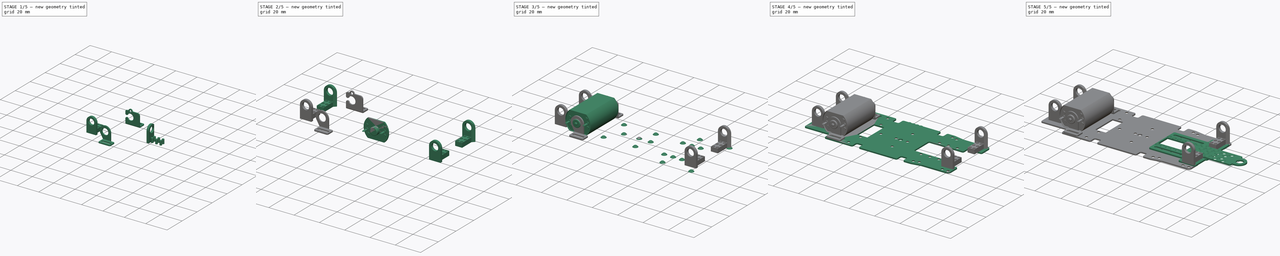
[diagram: build sequence overview — one tinted view per stage of 5, left to right]
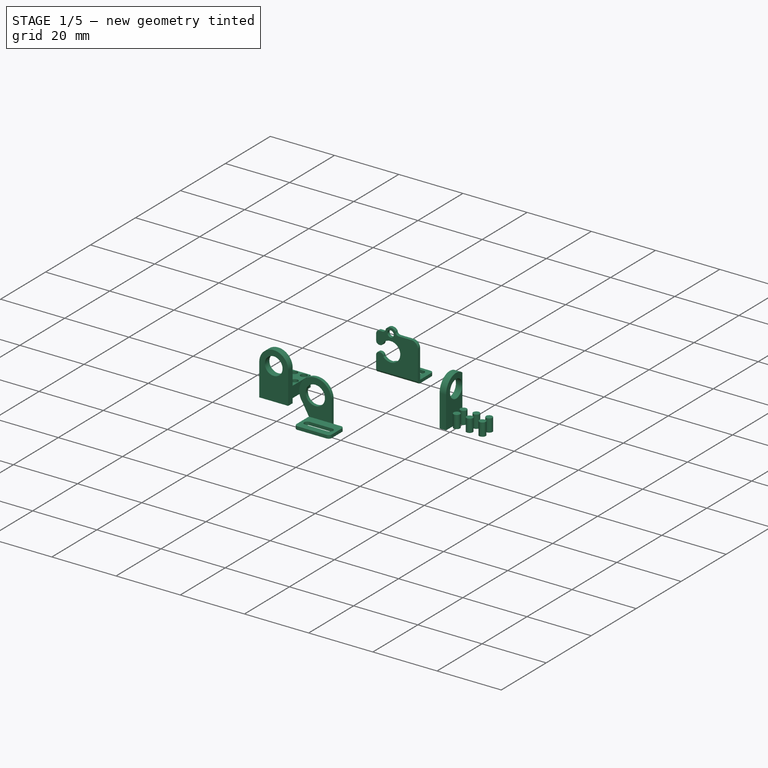
[diagram: stage 1 of 5 — iso view after this stage's code; geometry added in this stage tinted green]
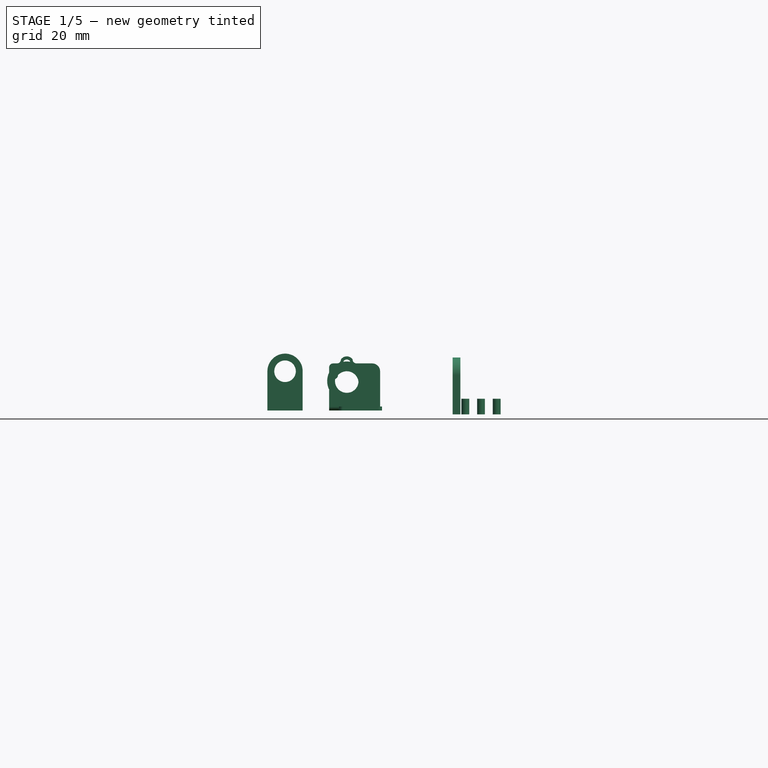
[diagram: stage 1 of 5 — front view after this stage's code; geometry added in this stage tinted green]
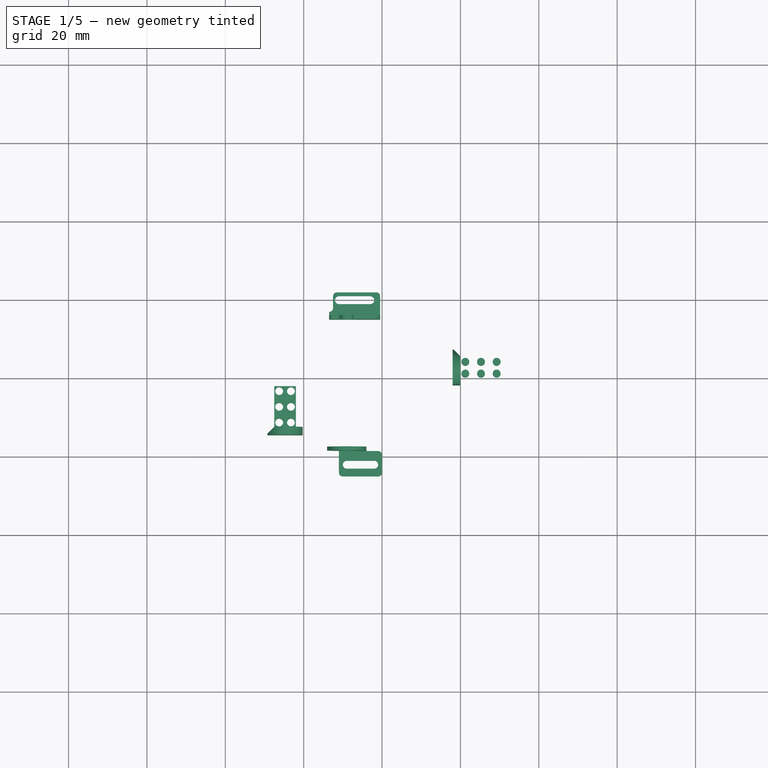
[diagram: stage 1 of 5 — top view after this stage's code; geometry added in this stage tinted green]
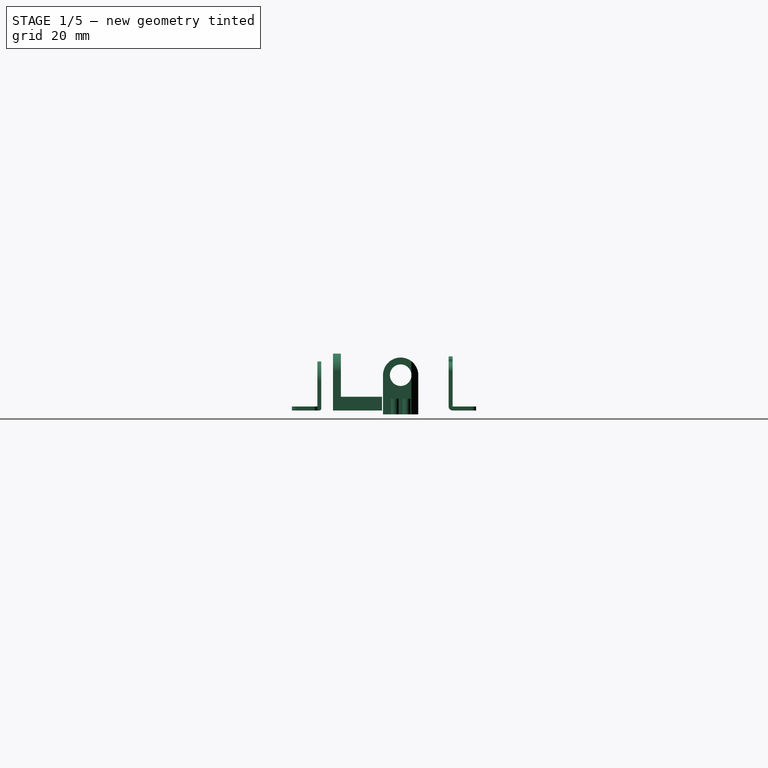
[diagram: stage 1 of 5 — right view after this stage's code; geometry added in this stage tinted green]
FCSTD DOCUMENT  (FreeCAD 0.14R3702 (Git))
Label: sc8000
License: CC-BY 3.0
LicenseURL: http://creativecommons.org/licenses/by/3.0/
objects: Sketcher::SketchObject×205, Part::Loft×70, Part::Extrusion×66, Part::Cut×33, Part::MultiFuse×16, Part::Compound×11, Part::Fillet×4, Part::Mirroring×1, Part::Chamfer×1
note: 407 computed .brp shape members not serialized (recipe doc carries the construction recipe); baked Part::Feature solids carry a one-line shape summary decoded from their .brp

FEATURE [Part::Extrusion] Extrude019
  Base = -> Sketch101
  Dir = (0,0,4)
  Solid = true
FEATURE [Part::Extrusion] Extrude020
  Base = -> Sketch103
  Dir = (0,0,4)
  Solid = true
FEATURE [Part::Extrusion] Extrude021
  Base = -> Sketch102
  Dir = (0,0,4)
  Solid = true
FEATURE [Sketcher::SketchObject] Sketch104
  Placement = pos=(-2,0,0) rot=(0.57735,0.57735,0.57735;2.0944rad)
  sketch-geometry (4):
    g0: LineSegment StartX=-1.75 StartY=0 StartZ=0 EndX=7.25 EndY=0 EndZ=0
    g1: LineSegment StartX=7.25 StartY=0 StartZ=0 EndX=7.25 EndY=10 EndZ=0
    g2: LineSegment StartX=-1.75 StartY=0 StartZ=0 EndX=-1.75 EndY=10 EndZ=0
    g3: ArcOfCircle CenterX=2.75 CenterY=10 CenterZ=0 NormalX=0 NormalY=0 NormalZ=1 Radius=4.5 StartAngle=0 EndAngle=3.14159
  constraints (6):
    c: Horizontal(g0)
    c: Coincident(g1,g0)
    c: Vertical(g1)
    c: Coincident(g2,g0)
    c: Vertical(g2)
    c: Coincident(g3,g2)
FEATURE [Part::Extrusion] Extrude022
  Base = -> Sketch104
  Dir = (2,0,0)
  Solid = true
FEATURE [Sketcher::SketchObject] Sketch105
  sketch-geometry (3):
    g0: LineSegment StartX=0 StartY=5.5 StartZ=0 EndX=-1.75 EndY=7.25 EndZ=0
    g1: LineSegment StartX=-1.75 StartY=7.25 StartZ=0 EndX=0 EndY=7.25 EndZ=0
    g2: LineSegment StartX=0 StartY=7.25 StartZ=0 EndX=0 EndY=5.5 EndZ=0
  constraints (6):
    c: PointOnObject(g0,g-2)
    c: Coincident(g1,g0)
    c: PointOnObject(g1,g-2)
    c: Horizontal(g1)
    c: Coincident(g2,g1)
    c: Coincident(g2,g0)
FEATURE [Part::Extrusion] Extrude023
  Base = -> Sketch105
  Dir = (0,0,15)
  Solid = true
FEATURE [Part::Cut] Cut018
  Base = -> Extrude022
  Tool = -> Extrude023
FEATURE [Sketcher::SketchObject] Sketch106
  Placement = pos=(-2,0,0) rot=(0.57735,0.57735,0.57735;2.0944rad)
  sketch-geometry (1):
    g0: Circle CenterX=2.75 CenterY=10 CenterZ=0 NormalX=0 NormalY=0 NormalZ=1 Radius=2.75
FEATURE [Part::Extrusion] Extrude024
  Base = -> Sketch106
  Dir = (5,0,0)
  Solid = true
FEATURE [Part::Cut] Cut019
  Base = -> Cut018
  Tool = -> Extrude024
FEATURE [Sketcher::SketchObject] Sketch172
  sketch-geometry (4):
    g0: LineSegment StartX=0 StartY=0 StartZ=0 EndX=10.5 EndY=0 EndZ=0
    g1: LineSegment StartX=10.5 StartY=0 StartZ=0 EndX=10.5 EndY=5.5 EndZ=0
    g2: LineSegment StartX=10.5 StartY=5.5 StartZ=0 EndX=0 EndY=5.5 EndZ=0
    g3: LineSegment StartX=0 StartY=5.5 StartZ=0 EndX=0 EndY=0 EndZ=0
  constraints (9):
    c: Coincident(g0,g1)
    c: Coincident(g1,g2)
    c: Coincident(g2,g3)
    c: Coincident(g3,g0)
    c: Horizontal(g0)
    c: Horizontal(g2)
    c: Vertical(g1)
    c: Vertical(g3)
    c: Coincident(g0,g-1)
FEATURE [Sketcher::SketchObject] Sketch173
  Placement = pos=(0.25,0.25,0) rot=(0,0,1;0rad)
  sketch-geometry (2):
    g0: Circle CenterX=1 CenterY=1 CenterZ=0 NormalX=0 NormalY=0 NormalZ=1 Radius=1
    g1: Circle CenterX=1 CenterY=4 CenterZ=0 NormalX=0 NormalY=0 NormalZ=1 Radius=1
  constraints (1):
    c: Tangent(g0,g-1)
FEATURE [Sketcher::SketchObject] Sketch174
  Placement = pos=(4.25,0.25,0) rot=(0,0,1;0rad)
  sketch-geometry (2):
    g0: Circle CenterX=1 CenterY=1 CenterZ=0 NormalX=0 NormalY=0 NormalZ=1 Radius=1
    g1: Circle CenterX=1 CenterY=4 CenterZ=0 NormalX=0 NormalY=0 NormalZ=1 Radius=1
  constraints (1):
    c: Tangent(g0,g-1)
FEATURE [Sketcher::SketchObject] Sketch175
  Placement = pos=(8.25,0.25,0) rot=(0,0,1;0rad)
  sketch-geometry (2):
    g0: Circle CenterX=1 CenterY=1 CenterZ=0 NormalX=0 NormalY=0 NormalZ=1 Radius=1
    g1: Circle CenterX=1 CenterY=4 CenterZ=0 NormalX=0 NormalY=0 NormalZ=1 Radius=1
  constraints (1):
    c: Tangent(g0,g-1)
FEATURE [Part::Extrusion] Extrude032
  Base = -> Sketch172
  Dir = (0,0,3.5)
  Solid = true
FEATURE [Part::Extrusion] Extrude033
  Base = -> Sketch173
  Dir = (0,0,4)
  Solid = true
FEATURE [Part::Extrusion] Extrude034
  Base = -> Sketch175
  Dir = (0,0,4)
  Solid = true
FEATURE [Part::Extrusion] Extrude035
  Base = -> Sketch174
  Dir = (0,0,4)
  Solid = true
FEATURE [Part::MultiFuse] Fusion013
  Shapes = -> [Extrude033,Extrude034,Extrude035]
FEATURE [Part::Cut] Cut023
  Base = -> Extrude032
  Tool = -> Fusion013
FEATURE [Sketcher::SketchObject] Sketch176
  Placement = pos=(-2,0,0) rot=(0.57735,0.57735,0.57735;2.0944rad)
  sketch-geometry (4):
    g0: LineSegment StartX=-1.75 StartY=0 StartZ=0 EndX=7.25 EndY=0 EndZ=0
    g1: LineSegment StartX=7.25 StartY=0 StartZ=0 EndX=7.25 EndY=10 EndZ=0
    g2: LineSegment StartX=-1.75 StartY=0 StartZ=0 EndX=-1.75 EndY=10 EndZ=0
    g3: ArcOfCircle CenterX=2.75 CenterY=10 CenterZ=0 NormalX=0 NormalY=0 NormalZ=1 Radius=4.5 StartAngle=0 EndAngle=3.14159
  constraints (6):
    c: Horizontal(g0)
    c: Coincident(g1,g0)
    c: Vertical(g1)
    c: Coincident(g2,g0)
    c: Vertical(g2)
    c: Coincident(g3,g2)
FEATURE [Part::Extrusion] Extrude036
  Base = -> Sketch176
  Dir = (2,0,0)
  Solid = true
FEATURE [Sketcher::SketchObject] Sketch177
  sketch-geometry (3):
    g0: LineSegment StartX=0 StartY=5.5 StartZ=0 EndX=-1.75 EndY=7.25 EndZ=0
    g1: LineSegment StartX=-1.75 StartY=7.25 StartZ=0 EndX=0 EndY=7.25 EndZ=0
    g2: LineSegment StartX=0 StartY=7.25 StartZ=0 EndX=0 EndY=5.5 EndZ=0
  constraints (6):
    c: PointOnObject(g0,g-2)
    c: Coincident(g1,g0)
    c: PointOnObject(g1,g-2)
    c: Horizontal(g1)
    c: Coincident(g2,g1)
    c: Coincident(g2,g0)
FEATURE [Part::Extrusion] Extrude037
  Base = -> Sketch177
  Dir = (0,0,15)
  Solid = true
FEATURE [Part::Cut] Cut024
  Base = -> Extrude036
  Tool = -> Extrude037
FEATURE [Sketcher::SketchObject] Sketch178
  Placement = pos=(-2,0,0) rot=(0.57735,0.57735,0.57735;2.0944rad)
  sketch-geometry (1):
    g0: Circle CenterX=2.75 CenterY=10 CenterZ=0 NormalX=0 NormalY=0 NormalZ=1 Radius=2.75
FEATURE [Part::Extrusion] Extrude038
  Base = -> Sketch178
  Dir = (5,0,0)
  Solid = true
FEATURE [Part::Cut] Cut025
  Base = -> Cut024
  Tool = -> Extrude038
FEATURE [Part::Compound] Compound003  label="SC8000-D.sw"
  Links = -> [Cut023,Cut025]
  Placement = pos=(-42,-12.5,1) rot=(0,0,1;1.5708rad)
FEATURE [Sketcher::SketchObject] Sketch264
  sketch-geometry (8):
    g0: ArcOfCircle CenterX=1 CenterY=1 CenterZ=0 NormalX=0 NormalY=0 NormalZ=1 Radius=1 StartAngle=3.14159 EndAngle=4.71239
    g1: LineSegment StartX=1 StartY=0 StartZ=0 EndX=11 EndY=0 EndZ=0
    g2: ArcOfCircle CenterX=11 CenterY=1 CenterZ=0 NormalX=0 NormalY=0 NormalZ=1 Radius=1 StartAngle=4.71239 EndAngle=6.28319
    g3: LineSegment StartX=0 StartY=1 StartZ=0 EndX=0 EndY=7 EndZ=0
    g4: LineSegment StartX=0 StartY=7 StartZ=0 EndX=13 EndY=7 EndZ=0
    g5: LineSegment StartX=13 StartY=7 StartZ=0 EndX=13 EndY=5 EndZ=0
    g6: ArcOfCircle CenterX=13 CenterY=4 CenterZ=0 NormalX=0 NormalY=0 NormalZ=1 Radius=1 StartAngle=1.5708 EndAngle=3.14159
    g7: LineSegment StartX=12 StartY=4 StartZ=0 EndX=12 EndY=1 EndZ=0
  constraints (14):
    c: PointOnObject(g0,g-2)
    c: Coincident(g1,g0)
    c: Horizontal(g1)
    c: Coincident(g3,g0)
    c: Vertical(g3)
    c: Coincident(g4,g3)
    c: Horizontal(g4)
    c: Coincident(g5,g4)
    c: Vertical(g5)
    c: Coincident(g7,g6)
    c: Vertical(g7)
    c: Coincident(g1,g2)
    c: Coincident(g2,g7)
    c: Coincident(g5,g6)
FEATURE [Sketcher::SketchObject] Sketch265
  sketch-geometry (4):
    g0: ArcOfCircle CenterX=10.5 CenterY=2 CenterZ=0 NormalX=0 NormalY=0 NormalZ=1 Radius=1 StartAngle=4.71239 EndAngle=7.85398
    g1: LineSegment StartX=10.5 StartY=3 StartZ=0 EndX=2.5 EndY=3 EndZ=0
    g2: ArcOfCircle CenterX=2.5 CenterY=2 CenterZ=0 NormalX=0 NormalY=0 NormalZ=1 Radius=1 StartAngle=1.5708 EndAngle=4.71239
    g3: LineSegment StartX=2.5 StartY=1 StartZ=0 EndX=10.5 EndY=1 EndZ=0
  constraints (6):
    c: Coincident(g1,g0)
    c: Horizontal(g1)
    c: Coincident(g3,g2)
    c: Coincident(g3,g0)
    c: Horizontal(g3)
    c: Coincident(g1,g2)
FEATURE [Part::Extrusion] Extrude067
  Base = -> Sketch264
  Dir = (0,0,1)
  Solid = true
FEATURE [Part::Extrusion] Extrude068
  Base = -> Sketch265
  Dir = (0,0,1)
  Solid = true
FEATURE [Part::Cut] Cut040
  Base = -> Extrude067
  Tool = -> Extrude068
FEATURE [Sketcher::SketchObject] Sketch266
  Placement = pos=(0,6,0) rot=(1,0,0;1.5708rad)
  sketch-geometry (10):
    g0: LineSegment StartX=0 StartY=1 StartZ=0 EndX=0 EndY=10 EndZ=0
    g1: ArcOfCircle CenterX=2 CenterY=10 CenterZ=0 NormalX=0 NormalY=0 NormalZ=1 Radius=2 StartAngle=1.5708 EndAngle=3.14159
    g2: LineSegment StartX=0 StartY=1 StartZ=0 EndX=13 EndY=1 EndZ=0
    g3: LineSegment StartX=13 StartY=1 StartZ=0 EndX=13 EndY=11 EndZ=0
    g4: LineSegment StartX=2 StartY=12 StartZ=0 EndX=6 EndY=12 EndZ=0
    g5: ArcOfCircle CenterX=6 CenterY=13 CenterZ=0 NormalX=0 NormalY=0 NormalZ=1 Radius=1 StartAngle=4.71239 EndAngle=6.28319
    g6: ArcOfCircle CenterX=12 CenterY=11 CenterZ=0 NormalX=0 NormalY=0 NormalZ=1 Radius=1 StartAngle=6.28319 EndAngle=7.85398
    g7: LineSegment StartX=12 StartY=12 StartZ=0 EndX=11 EndY=12 EndZ=0
    g8: ArcOfCircle CenterX=11 CenterY=13 CenterZ=0 NormalX=0 NormalY=0 NormalZ=1 Radius=1 StartAngle=3.14159 EndAngle=4.71239
    g9: ArcOfCircle CenterX=8.5 CenterY=12 CenterZ=0 NormalX=0 NormalY=0 NormalZ=1 Radius=1.80278 StartAngle=0.588003 EndAngle=2.55359
  constraints (17):
    c: PointOnObject(g0,g-2)
    c: PointOnObject(g0,g-2)
    c: Coincident(g2,g0)
    c: Horizontal(g2)
    c: Coincident(g3,g2)
    c: Vertical(g3)
    c: Coincident(g4,g1)
    c: Horizontal(g4)
    c: Coincident(g5,g4)
    c: Coincident(g0,g1)
    c: Coincident(g3,g6)
    c: Coincident(g7,g6)
    c: Horizontal(g7)
    c: Tangent(g7,g6)
    c: Coincident(g8,g7)
    c: Coincident(g9,g8)
    c: Coincident(g5,g9)
FEATURE [Sketcher::SketchObject] Sketch267
  Placement = pos=(0,3,0) rot=(1,0,0;1.5708rad)
  sketch-geometry (12):
    g0: ArcOfCircle CenterX=8.50012 CenterY=6.99081 CenterZ=0 NormalX=0 NormalY=0 NormalZ=1 Radius=3.00919 StartAngle=1.57083 EndAngle=4.71277
    g1: ArcOfCircle CenterX=8.50115 CenterY=6.97134 CenterZ=0 NormalX=0 NormalY=0 NormalZ=1 Radius=3.02866 StartAngle=0.733967 EndAngle=1.57117
    g2: ArcOfCircle CenterX=11.75 CenterY=9 CenterZ=0 NormalX=0 NormalY=0 NormalZ=1 Radius=1 StartAngle=3.14159 EndAngle=4.71239
    g3: LineSegment StartX=11.75 StartY=8 StartZ=0 EndX=12 EndY=8 EndZ=0
    g4: ArcOfCircle CenterX=12 CenterY=9 CenterZ=0 NormalX=0 NormalY=0 NormalZ=1 Radius=1 StartAngle=4.71239 EndAngle=6.28319
    g5: ArcOfCircle CenterX=11.7533 CenterY=4.99841 CenterZ=0 NormalX=0 NormalY=0 NormalZ=1 Radius=0.999226 StartAngle=1.57245 EndAngle=3.14738
    g6: LineSegment StartX=11.7517 StartY=5.99764 StartZ=0 EndX=12.0002 EndY=5.99764 EndZ=0
    g7: ArcOfCircle CenterX=12.0005 CenterY=4.99878 CenterZ=0 NormalX=0 NormalY=0 NormalZ=1 Radius=0.998856 StartAngle=0.000610314 EndAngle=1.57102
    g8: ArcOfCircle CenterX=8.5 CenterY=7 CenterZ=0 NormalX=0 NormalY=0 NormalZ=1 Radius=3.01837 StartAngle=4.71281 EndAngle=5.55562
    g9: LineSegment StartX=13 StartY=9 StartZ=0 EndX=15.5 EndY=9 EndZ=0
    g10: LineSegment StartX=12.9993 StartY=4.99939 StartZ=0 EndX=15.5 EndY=5 EndZ=0
    g11: LineSegment StartX=15.5 StartY=5 StartZ=0 EndX=15.5 EndY=9 EndZ=0
  constraints (15):
    c: Coincident(g1,g0)
    c: Horizontal(g3)
    c: Coincident(g6,g5)
    c: Horizontal(g6)
    c: Coincident(g7,g6)
    c: Coincident(g8,g0)
    c: Coincident(g8,g5)
    c: Coincident(g9,g4)
    c: Coincident(g10,g7)
    c: Coincident(g11,g9)
    c: Vertical(g11)
    c: Coincident(g1,g2)
    c: Coincident(g2,g3)
    c: Coincident(g4,g3)
    c: Coincident(g10,g11)
FEATURE [Sketcher::SketchObject] Sketch268
  Placement = pos=(0,4,0) rot=(1,0,0;1.5708rad)
  sketch-geometry (1):
    g0: Circle CenterX=8.5 CenterY=12 CenterZ=0 NormalX=0 NormalY=0 NormalZ=1 Radius=1
FEATURE [Part::Extrusion] Extrude069
  Base = -> Sketch268
  Dir = (0,10,0)
  Placement = pos=(0,-2,0) rot=(0,0,1;0rad)
  Solid = true
FEATURE [Part::Extrusion] Extrude070
  Base = -> Sketch267
  Dir = (0,5,0)
  Solid = true
FEATURE [Part::Extrusion] Extrude071
  Base = -> Sketch266
  Dir = (0,1,0)
  Solid = true
FEATURE [Part::Cut] Cut041
  Base = -> Extrude071
  Tool = -> Extrude069
FEATURE [Part::Cut] Cut042
  Base = -> Cut041
  Tool = -> Extrude070
FEATURE [Sketcher::SketchObject] Sketch269
  Placement = pos=(0,0,0) rot=(0.57735,0.57735,0.57735;2.0944rad)
  sketch-geometry (3):
    g0: ArcOfCircle CenterX=6 CenterY=1 CenterZ=0 NormalX=0 NormalY=0 NormalZ=1 Radius=1 StartAngle=4.71239 EndAngle=6.28319
    g1: LineSegment StartX=7 StartY=1 StartZ=0 EndX=7 EndY=0 EndZ=0
    g2: LineSegment StartX=6 StartY=0 StartZ=0 EndX=7 EndY=0 EndZ=0
  constraints (6):
    c: Coincident(g1,g0)
    c: PointOnObject(g1,g-1)
    c: Vertical(g1)
    c: Coincident(g2,g0)
    c: Coincident(g2,g1)
    c: Horizontal(g2)
FEATURE [Part::Extrusion] Extrude072
  Base = -> Sketch269
  Dir = (15,0,0)
  Solid = true
FEATURE [Part::Cut] Cut043
  Base = -> Cut040
  Tool = -> Extrude072
FEATURE [Part::Compound] Compound012  label="SC8000-F"
  Links = -> [Cut042,Cut043]
  Placement = pos=(-20.5,22,1) rot=(0,0,1;3.14159rad)
FEATURE [Sketcher::SketchObject] Sketch270
  Placement = pos=(0,-0.5,0) rot=(0,0,1;0rad)
  sketch-geometry (9):
    g0: ArcOfCircle CenterX=1 CenterY=-6 CenterZ=0 NormalX=0 NormalY=0 NormalZ=1 Radius=1 StartAngle=3.14159 EndAngle=4.71239
    g1: LineSegment StartX=1 StartY=-7 StartZ=0 EndX=10 EndY=-7 EndZ=0
    g2: ArcOfCircle CenterX=10 CenterY=-6 CenterZ=0 NormalX=0 NormalY=0 NormalZ=1 Radius=1 StartAngle=4.71239 EndAngle=6.28318
    g3: LineSegment StartX=11 StartY=-6 StartZ=0 EndX=11 EndY=-1.5 EndZ=0
    g4: ArcOfCircle CenterX=10 CenterY=-1.5 CenterZ=0 NormalX=0 NormalY=0 NormalZ=1 Radius=1 StartAngle=0 EndAngle=1.5708
    g5: LineSegment StartX=10 StartY=-0.5 StartZ=0 EndX=7 EndY=-0.5 EndZ=0
    g6: LineSegment StartX=7 StartY=-0.5 StartZ=0 EndX=7 EndY=0.5 EndZ=0
    g7: LineSegment StartX=7 StartY=0.5 StartZ=0 EndX=0 EndY=0.5 EndZ=0
    g8: LineSegment StartX=0 StartY=0.5 StartZ=0 EndX=0 EndY=-6 EndZ=0
  constraints (13):
    c: Coincident(g1,g0)
    c: Horizontal(g1)
    c: Coincident(g2,g1)
    c: Coincident(g3,g2)
    c: Vertical(g3)
    c: Coincident(g4,g3)
    c: Coincident(g5,g4)
    c: Horizontal(g5)
    c: Vertical(g6)
    c: Coincident(g7,g6)
    c: Coincident(g8,g7)
    c: Coincident(g8,g0)
    c: Vertical(g8)
FEATURE [Part::Extrusion] Extrude073
  Base = -> Sketch270
  Dir = (0,0,1)
  Solid = true
FEATURE [Sketcher::SketchObject] Sketch271
  sketch-geometry (4):
    g0: LineSegment StartX=2 StartY=-5.5 StartZ=0 EndX=9 EndY=-5.5 EndZ=0
    g1: ArcOfCircle CenterX=2 CenterY=-4.5 CenterZ=0 NormalX=0 NormalY=0 NormalZ=1 Radius=1 StartAngle=1.5708 EndAngle=4.71239
    g2: LineSegment StartX=2 StartY=-3.5 StartZ=0 EndX=9 EndY=-3.5 EndZ=0
    g3: ArcOfCircle CenterX=9 CenterY=-4.5 CenterZ=0 NormalX=0 NormalY=0 NormalZ=1 Radius=1 StartAngle=4.71239 EndAngle=7.85398
  constraints (6):
    c: Horizontal(g0)
    c: Coincident(g1,g0)
    c: Coincident(g2,g1)
    c: Horizontal(g2)
    c: Coincident(g3,g0)
    c: Coincident(g3,g2)
FEATURE [Part::Extrusion] Extrude074
  Base = -> Sketch271
  Dir = (0,0,1)
  Solid = true
FEATURE [Sketcher::SketchObject] Sketch272
  Placement = pos=(0,0,0) rot=(0.57735,0.57735,0.57735;2.0944rad)
  sketch-geometry (3):
    g0: ArcOfCircle CenterX=-0.5 CenterY=0.5 CenterZ=0 NormalX=0 NormalY=0 NormalZ=1 Radius=0.5 StartAngle=4.71239 EndAngle=6.28319
    g1: LineSegment StartX=0 StartY=0.5 StartZ=0 EndX=0 EndY=0 EndZ=0
    g2: LineSegment StartX=-0.5 StartY=0 StartZ=0 EndX=0 EndY=0 EndZ=0
  constraints (7):
    c: PointOnObject(g0,g-2)
    c: Coincident(g1,g0)
    c: Vertical(g1)
    c: Coincident(g2,g0)
    c: Coincident(g2,g-1)
    c: Horizontal(g2)
    c: Coincident(g1,g2)
FEATURE [Part::Extrusion] Extrude075
  Base = -> Sketch272
  Dir = (15,0,0)
  Solid = true
FEATURE [Part::Cut] Cut044
  Base = -> Extrude073
  Tool = -> Extrude075
FEATURE [Part::Cut] Cut045
  Base = -> Cut044
  Tool = -> Extrude074
FEATURE [Sketcher::SketchObject] Sketch273
  Placement = pos=(0,-1,-0.5) rot=(1,0,0;1.5708rad)
  sketch-geometry (4):
    g0: ArcOfCircle CenterX=2 CenterY=8 CenterZ=0 NormalX=0 NormalY=0 NormalZ=1 Radius=5 StartAngle=0 EndAngle=3.78509
    g1: LineSegment StartX=-2 StartY=5 StartZ=0 EndX=0 EndY=1.5 EndZ=0
    g2: LineSegment StartX=0 StartY=1.5 StartZ=0 EndX=7 EndY=1.5 EndZ=0
    g3: LineSegment StartX=7 StartY=8 StartZ=0 EndX=7 EndY=1.5 EndZ=0
  constraints (5):
    c: Coincident(g1,g0)
    c: Coincident(g2,g1)
    c: Coincident(g3,g0)
    c: Coincident(g3,g2)
    c: Vertical(g3)
FEATURE [Sketcher::SketchObject] Sketch274
  Placement = pos=(0,-1,-0.5) rot=(1,0,0;1.5708rad)
  sketch-geometry (1):
    g0: Circle CenterX=2 CenterY=8 CenterZ=0 NormalX=0 NormalY=0 NormalZ=1 Radius=3
FEATURE [Part::Extrusion] Extrude076
  Base = -> Sketch273
  Dir = (0,1,0)
  Solid = true
FEATURE [Part::Extrusion] Extrude077
  Base = -> Sketch274
  Dir = (0,1,0)
  Solid = true
FEATURE [Part::Cut] Cut046
  Base = -> Extrude076
  Tool = -> Extrude077
FEATURE [Part::Compound] Compound013  label="SC8000-E"
  Links = -> [Cut045,Cut046]
  Placement = pos=(-31,-17.5,1) rot=(0,0,1;0rad)
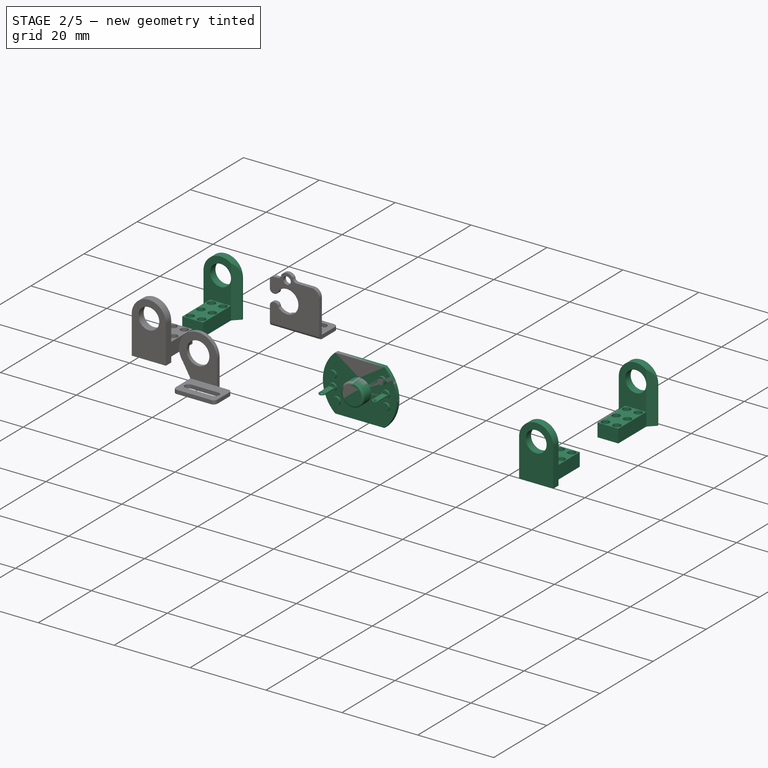
[diagram: stage 2 of 5 — iso view after this stage's code; geometry added in this stage tinted green]
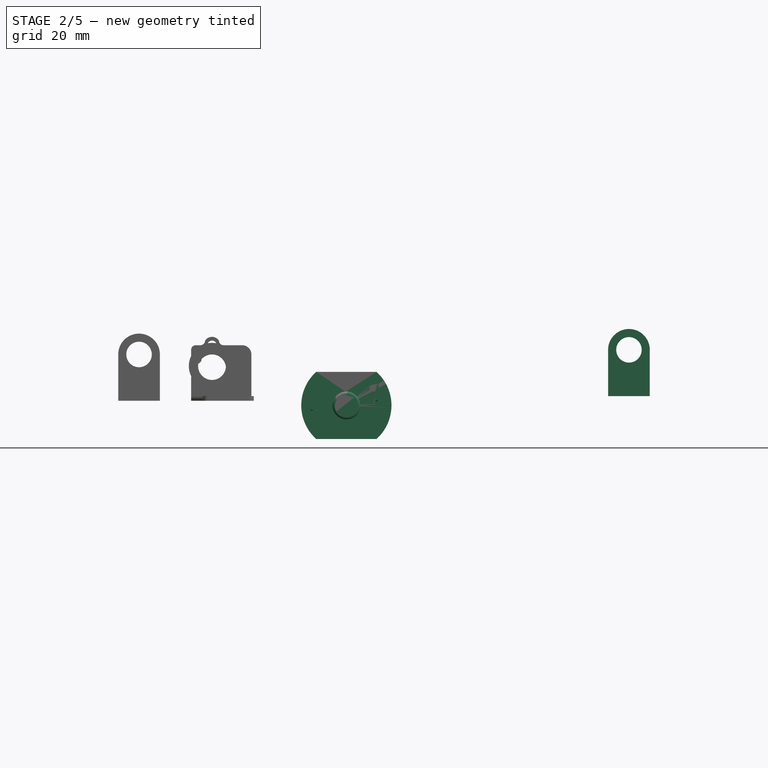
[diagram: stage 2 of 5 — front view after this stage's code; geometry added in this stage tinted green]
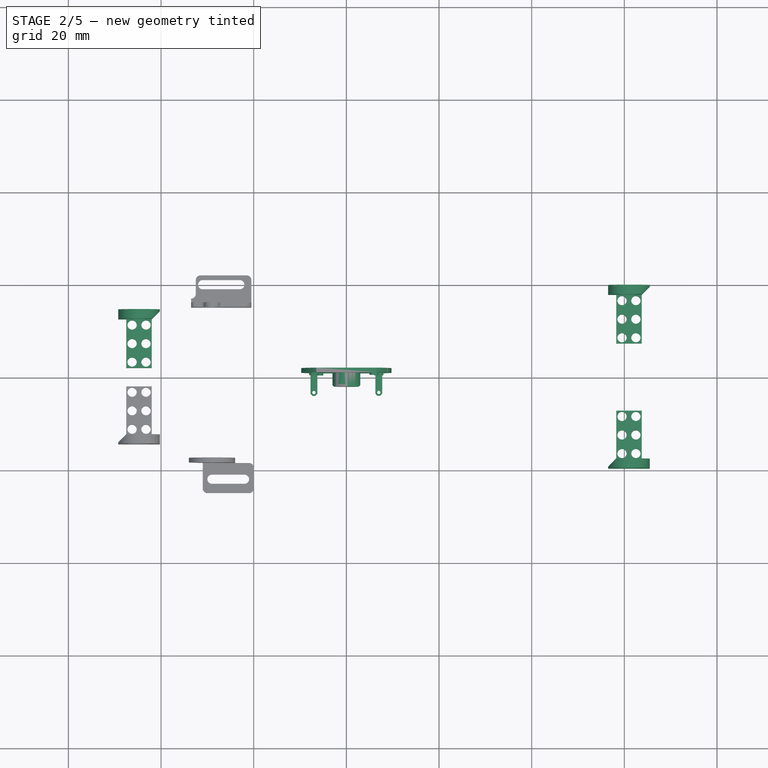
[diagram: stage 2 of 5 — top view after this stage's code; geometry added in this stage tinted green]
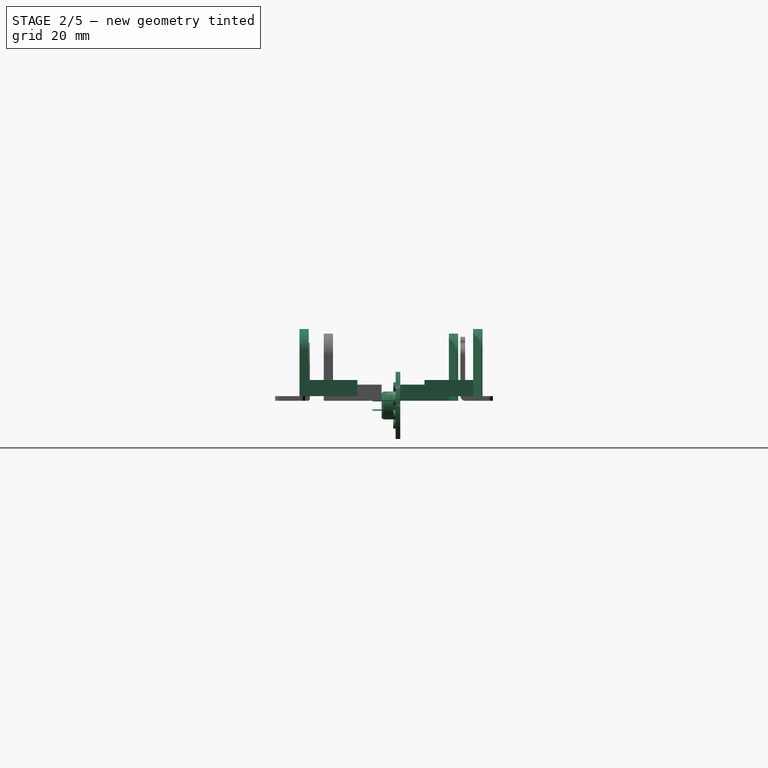
[diagram: stage 2 of 5 — right view after this stage's code; geometry added in this stage tinted green]
FEATURE [Sketcher::SketchObject] Sketch086
  sketch-geometry (4):
    g0: LineSegment StartX=0 StartY=0 StartZ=0 EndX=10.5 EndY=0 EndZ=0
    g1: LineSegment StartX=10.5 StartY=0 StartZ=0 EndX=10.5 EndY=5.5 EndZ=0
    g2: LineSegment StartX=10.5 StartY=5.5 StartZ=0 EndX=0 EndY=5.5 EndZ=0
    g3: LineSegment StartX=0 StartY=5.5 StartZ=0 EndX=0 EndY=0 EndZ=0
  constraints (9):
    c: Coincident(g0,g1)
    c: Coincident(g1,g2)
    c: Coincident(g2,g3)
    c: Coincident(g3,g0)
    c: Horizontal(g0)
    c: Horizontal(g2)
    c: Vertical(g1)
    c: Vertical(g3)
    c: Coincident(g0,g-1)
FEATURE [Sketcher::SketchObject] Sketch087
  Placement = pos=(0.25,0.25,0) rot=(0,0,1;0rad)
  sketch-geometry (2):
    g0: Circle CenterX=1 CenterY=1 CenterZ=0 NormalX=0 NormalY=0 NormalZ=1 Radius=1
    g1: Circle CenterX=1 CenterY=4 CenterZ=0 NormalX=0 NormalY=0 NormalZ=1 Radius=1
  constraints (1):
    c: Tangent(g0,g-1)
FEATURE [Sketcher::SketchObject] Sketch088
  Placement = pos=(4.25,0.25,0) rot=(0,0,1;0rad)
  sketch-geometry (2):
    g0: Circle CenterX=1 CenterY=1 CenterZ=0 NormalX=0 NormalY=0 NormalZ=1 Radius=1
    g1: Circle CenterX=1 CenterY=4 CenterZ=0 NormalX=0 NormalY=0 NormalZ=1 Radius=1
  constraints (1):
    c: Tangent(g0,g-1)
FEATURE [Sketcher::SketchObject] Sketch089
  Placement = pos=(8.25,0.25,0) rot=(0,0,1;0rad)
  sketch-geometry (2):
    g0: Circle CenterX=1 CenterY=1 CenterZ=0 NormalX=0 NormalY=0 NormalZ=1 Radius=1
    g1: Circle CenterX=1 CenterY=4 CenterZ=0 NormalX=0 NormalY=0 NormalZ=1 Radius=1
  constraints (1):
    c: Tangent(g0,g-1)
FEATURE [Part::Extrusion] Extrude004
  Base = -> Sketch086
  Dir = (0,0,3.5)
  Solid = true
FEATURE [Part::Extrusion] Extrude005
  Base = -> Sketch087
  Dir = (0,0,4)
  Solid = true
FEATURE [Part::Extrusion] Extrude006
  Base = -> Sketch089
  Dir = (0,0,4)
  Solid = true
FEATURE [Part::Extrusion] Extrude007
  Base = -> Sketch088
  Dir = (0,0,4)
  Solid = true
FEATURE [Part::MultiFuse] Fusion007
  Shapes = -> [Extrude005,Extrude006,Extrude007]
FEATURE [Part::Cut] Cut011
  Base = -> Extrude004
  Tool = -> Fusion007
FEATURE [Sketcher::SketchObject] Sketch090
  Placement = pos=(-2,0,0) rot=(0.57735,0.57735,0.57735;2.0944rad)
  sketch-geometry (4):
    g0: LineSegment StartX=-1.75 StartY=0 StartZ=0 EndX=7.25 EndY=0 EndZ=0
    g1: LineSegment StartX=7.25 StartY=0 StartZ=0 EndX=7.25 EndY=10 EndZ=0
    g2: LineSegment StartX=-1.75 StartY=0 StartZ=0 EndX=-1.75 EndY=10 EndZ=0
    g3: ArcOfCircle CenterX=2.75 CenterY=10 CenterZ=0 NormalX=0 NormalY=0 NormalZ=1 Radius=4.5 StartAngle=0 EndAngle=3.14159
  constraints (6):
    c: Horizontal(g0)
    c: Coincident(g1,g0)
    c: Vertical(g1)
    c: Coincident(g2,g0)
    c: Vertical(g2)
    c: Coincident(g3,g2)
FEATURE [Part::Extrusion] Extrude008
  Base = -> Sketch090
  Dir = (2,0,0)
  Solid = true
FEATURE [Sketcher::SketchObject] Sketch091
  sketch-geometry (3):
    g0: LineSegment StartX=0 StartY=5.5 StartZ=0 EndX=-1.75 EndY=7.25 EndZ=0
    g1: LineSegment StartX=-1.75 StartY=7.25 StartZ=0 EndX=0 EndY=7.25 EndZ=0
    g2: LineSegment StartX=0 StartY=7.25 StartZ=0 EndX=0 EndY=5.5 EndZ=0
  constraints (6):
    c: PointOnObject(g0,g-2)
    c: Coincident(g1,g0)
    c: PointOnObject(g1,g-2)
    c: Horizontal(g1)
    c: Coincident(g2,g1)
    c: Coincident(g2,g0)
FEATURE [Part::Extrusion] Extrude009
  Base = -> Sketch091
  Dir = (0,0,15)
  Solid = true
FEATURE [Part::Cut] Cut012
  Base = -> Extrude008
  Tool = -> Extrude009
FEATURE [Sketcher::SketchObject] Sketch092
  Placement = pos=(-2,0,0) rot=(0.57735,0.57735,0.57735;2.0944rad)
  sketch-geometry (1):
    g0: Circle CenterX=2.75 CenterY=10 CenterZ=0 NormalX=0 NormalY=0 NormalZ=1 Radius=2.75
FEATURE [Part::Extrusion] Extrude010
  Base = -> Sketch092
  Dir = (5,0,0)
  Solid = true
FEATURE [Part::Cut] Cut013
  Base = -> Cut012
  Tool = -> Extrude010
FEATURE [Part::Compound] Compound  label="SC8000-D.ne"
  Links = -> [Cut011,Cut013]
  Placement = pos=(58.25,17.75,2) rot=(0,0,-1;1.5708rad)
FEATURE [Sketcher::SketchObject] Sketch093
  sketch-geometry (4):
    g0: LineSegment StartX=0 StartY=0 StartZ=0 EndX=10.5 EndY=0 EndZ=0
    g1: LineSegment StartX=10.5 StartY=0 StartZ=0 EndX=10.5 EndY=5.5 EndZ=0
    g2: LineSegment StartX=10.5 StartY=5.5 StartZ=0 EndX=0 EndY=5.5 EndZ=0
    g3: LineSegment StartX=0 StartY=5.5 StartZ=0 EndX=0 EndY=0 EndZ=0
  constraints (9):
    c: Coincident(g0,g1)
    c: Coincident(g1,g2)
    c: Coincident(g2,g3)
    c: Coincident(g3,g0)
    c: Horizontal(g0)
    c: Horizontal(g2)
    c: Vertical(g1)
    c: Vertical(g3)
    c: Coincident(g0,g-1)
FEATURE [Sketcher::SketchObject] Sketch094
  Placement = pos=(0.25,0.25,0) rot=(0,0,1;0rad)
  sketch-geometry (2):
    g0: Circle CenterX=1 CenterY=1 CenterZ=0 NormalX=0 NormalY=0 NormalZ=1 Radius=1
    g1: Circle CenterX=1 CenterY=4 CenterZ=0 NormalX=0 NormalY=0 NormalZ=1 Radius=1
  constraints (1):
    c: Tangent(g0,g-1)
FEATURE [Sketcher::SketchObject] Sketch095
  Placement = pos=(4.25,0.25,0) rot=(0,0,1;0rad)
  sketch-geometry (2):
    g0: Circle CenterX=1 CenterY=1 CenterZ=0 NormalX=0 NormalY=0 NormalZ=1 Radius=1
    g1: Circle CenterX=1 CenterY=4 CenterZ=0 NormalX=0 NormalY=0 NormalZ=1 Radius=1
  constraints (1):
    c: Tangent(g0,g-1)
FEATURE [Sketcher::SketchObject] Sketch096
  Placement = pos=(8.25,0.25,0) rot=(0,0,1;0rad)
  sketch-geometry (2):
    g0: Circle CenterX=1 CenterY=1 CenterZ=0 NormalX=0 NormalY=0 NormalZ=1 Radius=1
    g1: Circle CenterX=1 CenterY=4 CenterZ=0 NormalX=0 NormalY=0 NormalZ=1 Radius=1
  constraints (1):
    c: Tangent(g0,g-1)
FEATURE [Part::Extrusion] Extrude011
  Base = -> Sketch093
  Dir = (0,0,3.5)
  Solid = true
FEATURE [Part::Extrusion] Extrude012
  Base = -> Sketch094
  Dir = (0,0,4)
  Solid = true
FEATURE [Part::Extrusion] Extrude013
  Base = -> Sketch096
  Dir = (0,0,4)
  Solid = true
FEATURE [Part::Extrusion] Extrude014
  Base = -> Sketch095
  Dir = (0,0,4)
  Solid = true
FEATURE [Part::MultiFuse] Fusion008
  Shapes = -> [Extrude012,Extrude013,Extrude014]
FEATURE [Part::Cut] Cut014
  Base = -> Extrude011
  Tool = -> Fusion008
FEATURE [Sketcher::SketchObject] Sketch097
  Placement = pos=(-2,0,0) rot=(0.57735,0.57735,0.57735;2.0944rad)
  sketch-geometry (4):
    g0: LineSegment StartX=-1.75 StartY=0 StartZ=0 EndX=7.25 EndY=0 EndZ=0
    g1: LineSegment StartX=7.25 StartY=0 StartZ=0 EndX=7.25 EndY=10 EndZ=0
    g2: LineSegment StartX=-1.75 StartY=0 StartZ=0 EndX=-1.75 EndY=10 EndZ=0
    g3: ArcOfCircle CenterX=2.75 CenterY=10 CenterZ=0 NormalX=0 NormalY=0 NormalZ=1 Radius=4.5 StartAngle=0 EndAngle=3.14159
  constraints (6):
    c: Horizontal(g0)
    c: Coincident(g1,g0)
    c: Vertical(g1)
    c: Coincident(g2,g0)
    c: Vertical(g2)
    c: Coincident(g3,g2)
FEATURE [Part::Extrusion] Extrude015
  Base = -> Sketch097
  Dir = (2,0,0)
  Solid = true
FEATURE [Sketcher::SketchObject] Sketch098
  sketch-geometry (3):
    g0: LineSegment StartX=0 StartY=5.5 StartZ=0 EndX=-1.75 EndY=7.25 EndZ=0
    g1: LineSegment StartX=-1.75 StartY=7.25 StartZ=0 EndX=0 EndY=7.25 EndZ=0
    g2: LineSegment StartX=0 StartY=7.25 StartZ=0 EndX=0 EndY=5.5 EndZ=0
  constraints (6):
    c: PointOnObject(g0,g-2)
    c: Coincident(g1,g0)
    c: PointOnObject(g1,g-2)
    c: Horizontal(g1)
    c: Coincident(g2,g1)
    c: Coincident(g2,g0)
FEATURE [Part::Extrusion] Extrude016
  Base = -> Sketch098
  Dir = (0,0,15)
  Solid = true
FEATURE [Part::Cut] Cut015
  Base = -> Extrude015
  Tool = -> Extrude016
FEATURE [Sketcher::SketchObject] Sketch099
  Placement = pos=(-2,0,0) rot=(0.57735,0.57735,0.57735;2.0944rad)
  sketch-geometry (1):
    g0: Circle CenterX=2.75 CenterY=10 CenterZ=0 NormalX=0 NormalY=0 NormalZ=1 Radius=2.75
FEATURE [Part::Extrusion] Extrude017
  Base = -> Sketch099
  Dir = (5,0,0)
  Solid = true
FEATURE [Part::Cut] Cut016
  Base = -> Cut015
  Tool = -> Extrude017
FEATURE [Part::Compound] Compound001  label="SC8000-D.se"
  Links = -> [Cut014,Cut016]
  Placement = pos=(63.75,-17.75,2) rot=(0,0,1;1.5708rad)
FEATURE [Sketcher::SketchObject] Sketch100
  sketch-geometry (4):
    g0: LineSegment StartX=0 StartY=0 StartZ=0 EndX=10.5 EndY=0 EndZ=0
    g1: LineSegment StartX=10.5 StartY=0 StartZ=0 EndX=10.5 EndY=5.5 EndZ=0
    g2: LineSegment StartX=10.5 StartY=5.5 StartZ=0 EndX=0 EndY=5.5 EndZ=0
    g3: LineSegment StartX=0 StartY=5.5 StartZ=0 EndX=0 EndY=0 EndZ=0
  constraints (9):
    c: Coincident(g0,g1)
    c: Coincident(g1,g2)
    c: Coincident(g2,g3)
    c: Coincident(g3,g0)
    c: Horizontal(g0)
    c: Horizontal(g2)
    c: Vertical(g1)
    c: Vertical(g3)
    c: Coincident(g0,g-1)
FEATURE [Sketcher::SketchObject] Sketch101
  Placement = pos=(0.25,0.25,0) rot=(0,0,1;0rad)
  sketch-geometry (2):
    g0: Circle CenterX=1 CenterY=1 CenterZ=0 NormalX=0 NormalY=0 NormalZ=1 Radius=1
    g1: Circle CenterX=1 CenterY=4 CenterZ=0 NormalX=0 NormalY=0 NormalZ=1 Radius=1
  constraints (1):
    c: Tangent(g0,g-1)
FEATURE [Sketcher::SketchObject] Sketch102
  Placement = pos=(4.25,0.25,0) rot=(0,0,1;0rad)
  sketch-geometry (2):
    g0: Circle CenterX=1 CenterY=1 CenterZ=0 NormalX=0 NormalY=0 NormalZ=1 Radius=1
    g1: Circle CenterX=1 CenterY=4 CenterZ=0 NormalX=0 NormalY=0 NormalZ=1 Radius=1
  constraints (1):
    c: Tangent(g0,g-1)
FEATURE [Sketcher::SketchObject] Sketch103
  Placement = pos=(8.25,0.25,0) rot=(0,0,1;0rad)
  sketch-geometry (2):
    g0: Circle CenterX=1 CenterY=1 CenterZ=0 NormalX=0 NormalY=0 NormalZ=1 Radius=1
    g1: Circle CenterX=1 CenterY=4 CenterZ=0 NormalX=0 NormalY=0 NormalZ=1 Radius=1
  constraints (1):
    c: Tangent(g0,g-1)
FEATURE [Part::Extrusion] Extrude018
  Base = -> Sketch100
  Dir = (0,0,3.5)
  Solid = true
FEATURE [Part::MultiFuse] Fusion009
  Shapes = -> [Extrude019,Extrude020,Extrude021]
FEATURE [Part::Cut] Cut017
  Base = -> Extrude018
  Tool = -> Fusion009
FEATURE [Part::Compound] Compound002  label="SC8000-D.nw"
  Links = -> [Cut017,Cut019]
  Placement = pos=(-47.5,12.5,1) rot=(0,0,-1;1.5708rad)
FEATURE [Part::Extrusion] Extrude048
  Base = -> Sketch245
  Dir = (0,1,0)
  Placement = pos=(0,1,0) rot=(0,0,1;0rad)
  Solid = true
FEATURE [Part::Extrusion] Extrude057
  Base = -> Sketch254
  Dir = (0,3,0)
  Placement = pos=(0,0.5,0) rot=(0,0,1;0rad)
  Solid = true
FEATURE [Part::Fillet] Fillet003
  Base = -> Extrude057
  Edges = 1 edges r=0.5: [Edge2]
FEATURE [Part::MultiFuse] Fusion018
  Shapes = -> [Extrude048,Fillet003]
FEATURE [Sketcher::SketchObject] Sketch256
  Placement = pos=(0,0,0) rot=(1,0,0;1.5708rad)
  sketch-geometry (3):
    g0: Circle CenterX=7 CenterY=1 CenterZ=0 NormalX=0 NormalY=0 NormalZ=1 Radius=1
    g1: Circle CenterX=6 CenterY=4 CenterZ=0 NormalX=0 NormalY=0 NormalZ=1 Radius=1
    g2: Circle CenterX=7 CenterY=-2 CenterZ=0 NormalX=0 NormalY=0 NormalZ=1 Radius=1
FEATURE [Part::Extrusion] Extrude058
  Base = -> Sketch256
  Dir = (0,0.5,0)
  Placement = pos=(0,0.5,0) rot=(0,0,1;0rad)
  Solid = true
FEATURE [Sketcher::SketchObject] Sketch257
  Placement = pos=(0.25,0,1) rot=(0,0,1;0rad)
  sketch-geometry (6):
    g0: LineSegment StartX=7.5 StartY=0.5 StartZ=0 EndX=7.5 EndY=-3.5 EndZ=0
    g1: LineSegment StartX=7.5 StartY=-3.5 StartZ=0 EndX=7 EndY=-4 EndZ=0
    g2: LineSegment StartX=7 StartY=-4 StartZ=0 EndX=6.5 EndY=-4 EndZ=0
    g3: LineSegment StartX=6.5 StartY=-4 StartZ=0 EndX=6 EndY=-3.5 EndZ=0
    g4: LineSegment StartX=6 StartY=-3.5 StartZ=0 EndX=6 EndY=0.5 EndZ=0
    g5: LineSegment StartX=6 StartY=0.5 StartZ=0 EndX=7.5 EndY=0.5 EndZ=0
  constraints (9):
    c: Vertical(g0)
    c: Coincident(g1,g0)
    c: Horizontal(g2)
    c: Coincident(g3,g2)
    c: Coincident(g4,g3)
    c: Vertical(g4)
    c: Coincident(g5,g4)
    c: Coincident(g5,g0)
    c: Horizontal(g5)
FEATURE [Part::Extrusion] Extrude059
  Base = -> Sketch257
  Dir = (0,0,0.25)
  Placement = pos=(0,0,-0.125) rot=(0,0,1;0rad)
  Solid = true
FEATURE [Sketcher::SketchObject] Sketch258
  sketch-geometry (1):
    g0: Circle CenterX=7 CenterY=-3.25 CenterZ=0 NormalX=0 NormalY=0 NormalZ=1 Radius=0.353553
FEATURE [Part::Extrusion] Extrude060
  Base = -> Sketch258
  Dir = (0,0,2)
  Solid = true
FEATURE [Part::Cut] Cut035
  Base = -> Extrude059
  Tool = -> Extrude060
FEATURE [Part::Compound] Compound007
  Links = -> [Extrude058,Cut035]
FEATURE [Part::Cut] Cut036
  Base = -> Extrude059
  Tool = -> Extrude060
FEATURE [Part::Extrusion] Extrude061
  Base = -> Sketch256
  Dir = (0,0.5,0)
  Placement = pos=(0,0.5,0) rot=(0,0,1;0rad)
  Solid = true
FEATURE [Part::Compound] Compound008
  Links = -> [Extrude061,Cut036]
  Placement = pos=(0,0,0) rot=(0,1,0;3.14159rad)
FEATURE [Part::Compound] Compound010  label="SC8000.axle"
  Links = -> [Compound003,Compound002,Compound001,Compound]
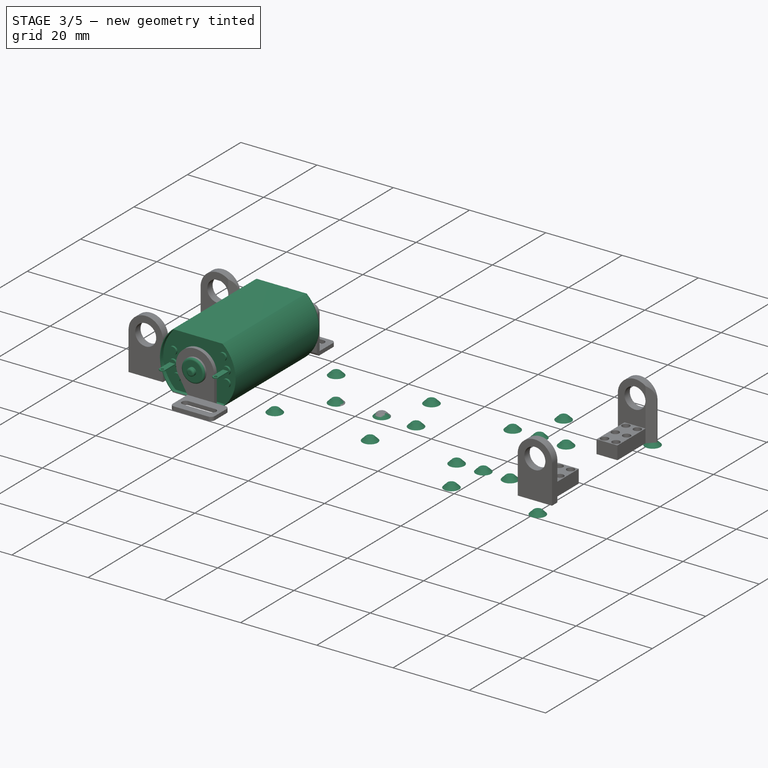
[diagram: stage 3 of 5 — iso view after this stage's code; geometry added in this stage tinted green]
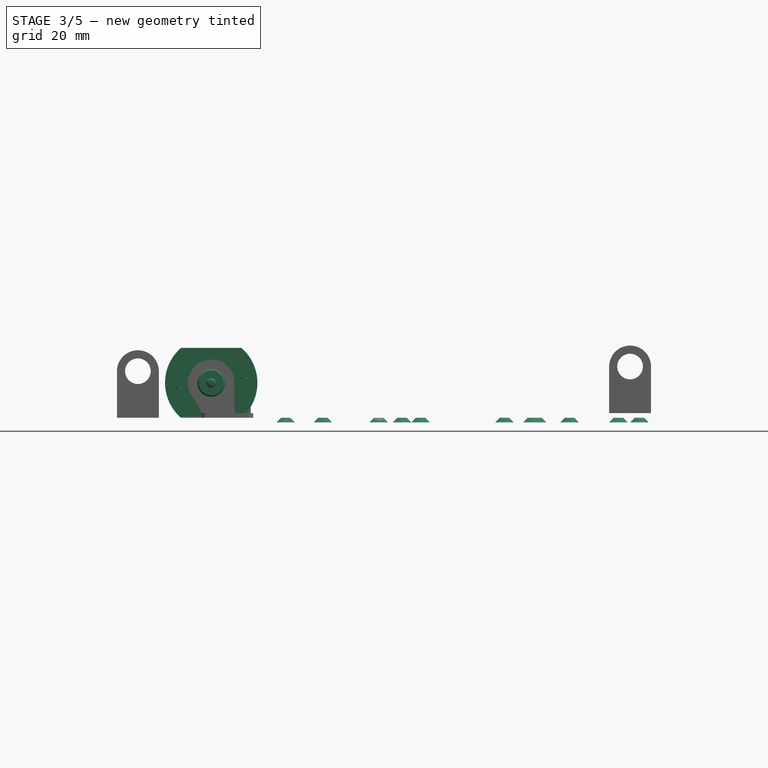
[diagram: stage 3 of 5 — front view after this stage's code; geometry added in this stage tinted green]
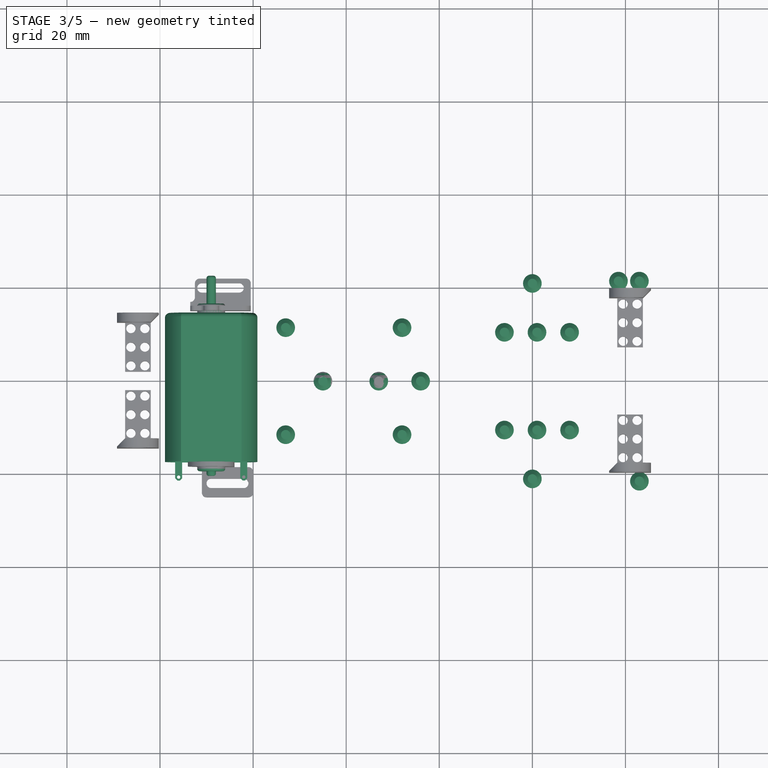
[diagram: stage 3 of 5 — top view after this stage's code; geometry added in this stage tinted green]
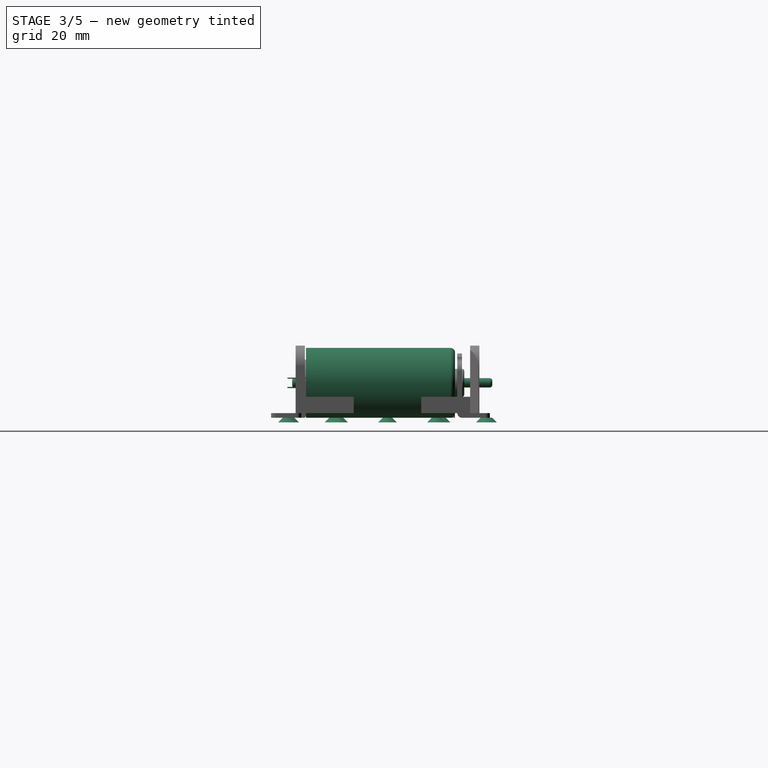
[diagram: stage 3 of 5 — right view after this stage's code; geometry added in this stage tinted green]
FEATURE [Sketcher::SketchObject] Sketch200
  Placement = pos=(0,0,1) rot=(0,0,1;0rad)
  sketch-geometry (1):
    g0: Circle CenterX=-43.5 CenterY=11 CenterZ=0 NormalX=0 NormalY=0 NormalZ=1 Radius=1
FEATURE [Sketcher::SketchObject] Sketch201
  sketch-geometry (1):
    g0: Circle CenterX=-43.5 CenterY=11 CenterZ=0 NormalX=0 NormalY=0 NormalZ=1 Radius=2
FEATURE [Part::Loft] Loft051
  Closed = false
  Placement = pos=(83.5,10,0) rot=(0,0,1;0rad)
  Ruled = false
  Sections = -> [Sketch201,Sketch200]
  Solid = true
FEATURE [Sketcher::SketchObject] Sketch202
  Placement = pos=(0,0,1) rot=(0,0,1;0rad)
  sketch-geometry (1):
    g0: Circle CenterX=-43.5 CenterY=11 CenterZ=0 NormalX=0 NormalY=0 NormalZ=1 Radius=1
FEATURE [Sketcher::SketchObject] Sketch203
  sketch-geometry (1):
    g0: Circle CenterX=-43.5 CenterY=11 CenterZ=0 NormalX=0 NormalY=0 NormalZ=1 Radius=2
FEATURE [Part::Loft] Loft052
  Closed = false
  Placement = pos=(83.5,-32,0) rot=(0,0,1;0rad)
  Ruled = false
  Sections = -> [Sketch203,Sketch202]
  Solid = true
FEATURE [Sketcher::SketchObject] Sketch204
  Placement = pos=(0,0,1) rot=(0,0,1;0rad)
  sketch-geometry (1):
    g0: Circle CenterX=-43.5 CenterY=11 CenterZ=0 NormalX=0 NormalY=0 NormalZ=1 Radius=1
FEATURE [Sketcher::SketchObject] Sketch205
  sketch-geometry (1):
    g0: Circle CenterX=-43.5 CenterY=11 CenterZ=0 NormalX=0 NormalY=0 NormalZ=1 Radius=2
FEATURE [Part::Loft] Loft053
  Closed = false
  Placement = pos=(106.5,-32.5,0) rot=(0,0,1;0rad)
  Ruled = false
  Sections = -> [Sketch205,Sketch204]
  Solid = true
FEATURE [Sketcher::SketchObject] Sketch208
  Placement = pos=(0,0,1) rot=(0,0,1;0rad)
  sketch-geometry (1):
    g0: Circle CenterX=-43.5 CenterY=11 CenterZ=0 NormalX=0 NormalY=0 NormalZ=1 Radius=1
FEATURE [Sketcher::SketchObject] Sketch209
  sketch-geometry (1):
    g0: Circle CenterX=-43.5 CenterY=11 CenterZ=0 NormalX=0 NormalY=0 NormalZ=1 Radius=2
FEATURE [Part::Loft] Loft055
  Closed = false
  Placement = pos=(106.5,10.5,0) rot=(0,0,1;0rad)
  Ruled = false
  Sections = -> [Sketch209,Sketch208]
  Solid = true
FEATURE [Sketcher::SketchObject] Sketch210
  Placement = pos=(0,0,1) rot=(0,0,1;0rad)
  sketch-geometry (1):
    g0: Circle CenterX=-43.5 CenterY=11 CenterZ=0 NormalX=0 NormalY=0 NormalZ=1 Radius=1
FEATURE [Sketcher::SketchObject] Sketch211
  sketch-geometry (1):
    g0: Circle CenterX=-43.5 CenterY=11 CenterZ=0 NormalX=0 NormalY=0 NormalZ=1 Radius=2
FEATURE [Part::Loft] Loft056
  Closed = false
  Placement = pos=(102,10.5,0) rot=(0,0,1;0rad)
  Ruled = false
  Sections = -> [Sketch211,Sketch210]
  Solid = true
FEATURE [Sketcher::SketchObject] Sketch212
  Placement = pos=(0,0,1) rot=(0,0,1;0rad)
  sketch-geometry (1):
    g0: Circle CenterX=-43.5 CenterY=11 CenterZ=0 NormalX=0 NormalY=0 NormalZ=1 Radius=1
FEATURE [Sketcher::SketchObject] Sketch213
  sketch-geometry (1):
    g0: Circle CenterX=-43.5 CenterY=11 CenterZ=0 NormalX=0 NormalY=0 NormalZ=1 Radius=2
FEATURE [Part::Loft] Loft057
  Closed = false
  Placement = pos=(91.5,-0.5,0) rot=(0,0,1;0rad)
  Ruled = false
  Sections = -> [Sketch213,Sketch212]
  Solid = true
FEATURE [Sketcher::SketchObject] Sketch214
  Placement = pos=(0,0,1) rot=(0,0,1;0rad)
  sketch-geometry (1):
    g0: Circle CenterX=-43.5 CenterY=11 CenterZ=0 NormalX=0 NormalY=0 NormalZ=1 Radius=1
FEATURE [Sketcher::SketchObject] Sketch215
  sketch-geometry (1):
    g0: Circle CenterX=-43.5 CenterY=11 CenterZ=0 NormalX=0 NormalY=0 NormalZ=1 Radius=2
FEATURE [Part::Loft] Loft058
  Closed = false
  Placement = pos=(84.5,-0.5,0) rot=(0,0,1;0rad)
  Ruled = false
  Sections = -> [Sketch215,Sketch214]
  Solid = true
FEATURE [Sketcher::SketchObject] Sketch216
  Placement = pos=(0,0,1) rot=(0,0,1;0rad)
  sketch-geometry (1):
    g0: Circle CenterX=-43.5 CenterY=11 CenterZ=0 NormalX=0 NormalY=0 NormalZ=1 Radius=1
FEATURE [Sketcher::SketchObject] Sketch217
  sketch-geometry (1):
    g0: Circle CenterX=-43.5 CenterY=11 CenterZ=0 NormalX=0 NormalY=0 NormalZ=1 Radius=2
FEATURE [Part::Loft] Loft059
  Closed = false
  Placement = pos=(77.5,-0.5,0) rot=(0,0,1;0rad)
  Ruled = false
  Sections = -> [Sketch217,Sketch216]
  Solid = true
FEATURE [Sketcher::SketchObject] Sketch218
  Placement = pos=(0,0,1) rot=(0,0,1;0rad)
  sketch-geometry (1):
    g0: Circle CenterX=-43.5 CenterY=11 CenterZ=0 NormalX=0 NormalY=0 NormalZ=1 Radius=1
FEATURE [Sketcher::SketchObject] Sketch219
  sketch-geometry (1):
    g0: Circle CenterX=-43.5 CenterY=11 CenterZ=0 NormalX=0 NormalY=0 NormalZ=1 Radius=2
FEATURE [Part::Loft] Loft060
  Closed = false
  Placement = pos=(91.5,-21.5,0) rot=(0,0,1;0rad)
  Ruled = false
  Sections = -> [Sketch219,Sketch218]
  Solid = true
FEATURE [Sketcher::SketchObject] Sketch220
  Placement = pos=(0,0,1) rot=(0,0,1;0rad)
  sketch-geometry (1):
    g0: Circle CenterX=-43.5 CenterY=11 CenterZ=0 NormalX=0 NormalY=0 NormalZ=1 Radius=1
FEATURE [Sketcher::SketchObject] Sketch221
  sketch-geometry (1):
    g0: Circle CenterX=-43.5 CenterY=11 CenterZ=0 NormalX=0 NormalY=0 NormalZ=1 Radius=2
FEATURE [Part::Loft] Loft061
  Closed = false
  Placement = pos=(84.5,-21.5,0) rot=(0,0,1;0rad)
  Ruled = false
  Sections = -> [Sketch221,Sketch220]
  Solid = true
FEATURE [Sketcher::SketchObject] Sketch222
  Placement = pos=(0,0,1) rot=(0,0,1;0rad)
  sketch-geometry (1):
    g0: Circle CenterX=-43.5 CenterY=11 CenterZ=0 NormalX=0 NormalY=0 NormalZ=1 Radius=1
FEATURE [Sketcher::SketchObject] Sketch223
  sketch-geometry (1):
    g0: Circle CenterX=-43.5 CenterY=11 CenterZ=0 NormalX=0 NormalY=0 NormalZ=1 Radius=2
FEATURE [Part::Loft] Loft062
  Closed = false
  Placement = pos=(77.5,-21.5,0) rot=(0,0,1;0rad)
  Ruled = false
  Sections = -> [Sketch223,Sketch222]
  Solid = true
FEATURE [Sketcher::SketchObject] Sketch224
  Placement = pos=(-17,-9.5,0) rot=(0,0,1;0rad)
  sketch-geometry (4):
    g0: LineSegment StartX=0 StartY=0 StartZ=0 EndX=8 EndY=0 EndZ=0
    g1: LineSegment StartX=8 StartY=0 StartZ=0 EndX=8 EndY=19 EndZ=0
    g2: LineSegment StartX=8 StartY=19 StartZ=0 EndX=0 EndY=19 EndZ=0
    g3: LineSegment StartX=0 StartY=19 StartZ=0 EndX=0 EndY=0 EndZ=0
  constraints (9):
    c: Coincident(g0,g1)
    c: Coincident(g1,g2)
    c: Coincident(g2,g3)
    c: Coincident(g3,g0)
    c: Horizontal(g0)
    c: Horizontal(g2)
    c: Vertical(g1)
    c: Vertical(g3)
    c: Coincident(g0,g-1)
FEATURE [Sketcher::SketchObject] Sketch225
  Placement = pos=(0,0,1) rot=(0,0,1;0rad)
  sketch-geometry (1):
    g0: Circle CenterX=-43.5 CenterY=11 CenterZ=0 NormalX=0 NormalY=0 NormalZ=1 Radius=1
FEATURE [Sketcher::SketchObject] Sketch226
  sketch-geometry (1):
    g0: Circle CenterX=-43.5 CenterY=11 CenterZ=0 NormalX=0 NormalY=0 NormalZ=1 Radius=2
FEATURE [Part::Loft] Loft063
  Closed = false
  Placement = pos=(30.5,-22.5,0) rot=(0,0,1;0rad)
  Ruled = false
  Sections = -> [Sketch226,Sketch225]
  Solid = true
FEATURE [Sketcher::SketchObject] Sketch227
  Placement = pos=(0,0,1) rot=(0,0,1;0rad)
  sketch-geometry (1):
    g0: Circle CenterX=-43.5 CenterY=11 CenterZ=0 NormalX=0 NormalY=0 NormalZ=1 Radius=1
FEATURE [Sketcher::SketchObject] Sketch228
  sketch-geometry (1):
    g0: Circle CenterX=-43.5 CenterY=11 CenterZ=0 NormalX=0 NormalY=0 NormalZ=1 Radius=2
FEATURE [Part::Loft] Loft064
  Closed = false
  Placement = pos=(30.5,0.5,0) rot=(0,0,1;0rad)
  Ruled = false
  Sections = -> [Sketch228,Sketch227]
  Solid = true
FEATURE [Sketcher::SketchObject] Sketch229
  Placement = pos=(0,0,1) rot=(0,0,1;0rad)
  sketch-geometry (1):
    g0: Circle CenterX=-43.5 CenterY=11 CenterZ=0 NormalX=0 NormalY=0 NormalZ=1 Radius=1
FEATURE [Sketcher::SketchObject] Sketch230
  sketch-geometry (1):
    g0: Circle CenterX=-43.5 CenterY=11 CenterZ=0 NormalX=0 NormalY=0 NormalZ=1 Radius=2
FEATURE [Part::Loft] Loft065
  Closed = false
  Placement = pos=(55.5,-22.5,0) rot=(0,0,1;0rad)
  Ruled = false
  Sections = -> [Sketch230,Sketch229]
  Solid = true
FEATURE [Sketcher::SketchObject] Sketch231
  Placement = pos=(0,0,1) rot=(0,0,1;0rad)
  sketch-geometry (1):
    g0: Circle CenterX=-43.5 CenterY=11 CenterZ=0 NormalX=0 NormalY=0 NormalZ=1 Radius=1
FEATURE [Sketcher::SketchObject] Sketch232
  sketch-geometry (1):
    g0: Circle CenterX=-43.5 CenterY=11 CenterZ=0 NormalX=0 NormalY=0 NormalZ=1 Radius=2
FEATURE [Part::Loft] Loft066
  Closed = false
  Placement = pos=(55.5,0.5,0) rot=(0,0,1;0rad)
  Ruled = false
  Sections = -> [Sketch232,Sketch231]
  Solid = true
FEATURE [Sketcher::SketchObject] Sketch233
  Placement = pos=(0,0,1) rot=(0,0,1;0rad)
  sketch-geometry (1):
    g0: Circle CenterX=-43.5 CenterY=11 CenterZ=0 NormalX=0 NormalY=0 NormalZ=1 Radius=1
FEATURE [Sketcher::SketchObject] Sketch234
  sketch-geometry (1):
    g0: Circle CenterX=-43.5 CenterY=11 CenterZ=0 NormalX=0 NormalY=0 NormalZ=1 Radius=2
FEATURE [Part::Loft] Loft067
  Closed = false
  Placement = pos=(38.5,-11,0) rot=(0,0,1;0rad)
  Ruled = false
  Sections = -> [Sketch234,Sketch233]
  Solid = true
FEATURE [Sketcher::SketchObject] Sketch235
  Placement = pos=(0,0,1) rot=(0,0,1;0rad)
  sketch-geometry (1):
    g0: Circle CenterX=-43.5 CenterY=11 CenterZ=0 NormalX=0 NormalY=0 NormalZ=1 Radius=1
FEATURE [Sketcher::SketchObject] Sketch236
  sketch-geometry (1):
    g0: Circle CenterX=-43.5 CenterY=11 CenterZ=0 NormalX=0 NormalY=0 NormalZ=1 Radius=2
FEATURE [Part::Loft] Loft068
  Closed = false
  Placement = pos=(50.5,-11,0) rot=(0,0,1;0rad)
  Ruled = false
  Sections = -> [Sketch236,Sketch235]
  Solid = true
FEATURE [Sketcher::SketchObject] Sketch237
  Placement = pos=(0,0,1) rot=(0,0,1;0rad)
  sketch-geometry (1):
    g0: Circle CenterX=-43.5 CenterY=11 CenterZ=0 NormalX=0 NormalY=0 NormalZ=1 Radius=1
FEATURE [Sketcher::SketchObject] Sketch238
  sketch-geometry (1):
    g0: Circle CenterX=-43.5 CenterY=11 CenterZ=0 NormalX=0 NormalY=0 NormalZ=1 Radius=2
FEATURE [Part::Loft] Loft069
  Closed = false
  Placement = pos=(59.5,-11,0) rot=(0,0,1;0rad)
  Ruled = false
  Sections = -> [Sketch238,Sketch237]
  Solid = true
FEATURE [Sketcher::SketchObject] Sketch244
  Placement = pos=(0,0,0) rot=(1,0,0;1.5708rad)
  sketch-geometry (4):
    g0: LineSegment StartX=-6.5 StartY=7.5 StartZ=0 EndX=6.5 EndY=7.5 EndZ=0
    g1: LineSegment StartX=-6.5 StartY=-7.5 StartZ=0 EndX=6.5 EndY=-7.5 EndZ=0
    g2: ArcOfCircle CenterX=0 CenterY=0 CenterZ=0 NormalX=0 NormalY=0 NormalZ=1 Radius=9.92471 StartAngle=5.42648 EndAngle=7.13989
    g3: ArcOfCircle CenterX=0 CenterY=0 CenterZ=0 NormalX=0 NormalY=0 NormalZ=1 Radius=9.92472 StartAngle=2.28489 EndAngle=3.9983
  constraints (8):
    c: Horizontal(g0)
    c: Horizontal(g1)
    c: Coincident(g2,g-1)
    c: Coincident(g2,g0)
    c: Coincident(g2,g1)
    c: Coincident(g3,g-1)
    c: Coincident(g3,g0)
    c: Coincident(g3,g1)
FEATURE [Part::Extrusion] Extrude046
  Base = -> Sketch244
  Dir = (0,32,0)
  Solid = true
FEATURE [Part::Fillet] Fillet
  Base = -> Extrude046
  Edges = 4 edges r=1: [Edge4,Edge7,Edge10,Edge12]
FEATURE [Sketcher::SketchObject] Sketch245
  Placement = pos=(0,0,0) rot=(1,0,0;1.5708rad)
  sketch-geometry (4):
    g0: LineSegment StartX=-6.5 StartY=7.25 StartZ=0 EndX=6.5 EndY=7.25 EndZ=0
    g1: ArcOfCircle CenterX=0 CenterY=0 CenterZ=0 NormalX=0 NormalY=0 NormalZ=1 Radius=9.73717 StartAngle=5.4433 EndAngle=7.12308
    g2: ArcOfCircle CenterX=0 CenterY=0 CenterZ=0 NormalX=0 NormalY=0 NormalZ=1 Radius=9.73717 StartAngle=2.3017 EndAngle=3.98148
    g3: LineSegment StartX=-6.5 StartY=-7.25 StartZ=0 EndX=6.5 EndY=-7.25 EndZ=0
  constraints (8):
    c: Horizontal(g0)
    c: Coincident(g1,g-1)
    c: Coincident(g1,g0)
    c: Coincident(g2,g-1)
    c: Coincident(g2,g0)
    c: Coincident(g3,g2)
    c: Coincident(g3,g1)
    c: Horizontal(g3)
FEATURE [Sketcher::SketchObject] Sketch246
  Placement = pos=(0,0,0) rot=(1,0,0;1.5708rad)
  sketch-geometry (4):
    g0: LineSegment StartX=-6.5 StartY=7.25 StartZ=0 EndX=6.5 EndY=7.25 EndZ=0
    g1: ArcOfCircle CenterX=0 CenterY=0 CenterZ=0 NormalX=0 NormalY=0 NormalZ=1 Radius=9.73717 StartAngle=5.4433 EndAngle=7.12308
    g2: ArcOfCircle CenterX=0 CenterY=0 CenterZ=0 NormalX=0 NormalY=0 NormalZ=1 Radius=9.73717 StartAngle=2.3017 EndAngle=3.98148
    g3: LineSegment StartX=-6.5 StartY=-7.25 StartZ=0 EndX=6.5 EndY=-7.25 EndZ=0
  constraints (8):
    c: Horizontal(g0)
    c: Coincident(g1,g-1)
    c: Coincident(g1,g0)
    c: Coincident(g2,g-1)
    c: Coincident(g2,g0)
    c: Coincident(g3,g2)
    c: Coincident(g3,g1)
    c: Horizontal(g3)
FEATURE [Part::Extrusion] Extrude047
  Base = -> Sketch246
  Dir = (0,31,0)
  Solid = true
FEATURE [Part::Chamfer] Chamfer
  Base = -> Extrude047
  Edges = 4 edges r=1: [Edge4,Edge7,Edge10,Edge12]
FEATURE [Part::Cut] Cut029
  Base = -> Fillet
  Tool = -> Chamfer
FEATURE [Sketcher::SketchObject] Sketch247
  Placement = pos=(0,32,0) rot=(1,0,0;1.5708rad)
  sketch-geometry (1):
    g0: Circle CenterX=0 CenterY=0 CenterZ=0 NormalX=0 NormalY=0 NormalZ=1 Radius=3
  constraints (1):
    c: Coincident(g0,g-1)
FEATURE [Part::Extrusion] Extrude049
  Base = -> Sketch247
  Dir = (0,2,0)
  Solid = true
FEATURE [Part::Fillet] Fillet001
  Base = -> Extrude049
  Edges = 1 edges r=0.5: [Edge3]
FEATURE [Sketcher::SketchObject] Sketch248
  Placement = pos=(0,34,0) rot=(1,0,0;1.5708rad)
  sketch-geometry (1):
    g0: Circle CenterX=0 CenterY=0 CenterZ=0 NormalX=0 NormalY=0 NormalZ=1 Radius=2
  constraints (1):
    c: Coincident(g0,g-1)
FEATURE [Sketcher::SketchObject] Sketch249
  Placement = pos=(0,31,0) rot=(1,0,0;1.5708rad)
  sketch-geometry (1):
    g0: Circle CenterX=0 CenterY=0 CenterZ=0 NormalX=0 NormalY=0 NormalZ=1 Radius=2
  constraints (1):
    c: Coincident(g0,g-1)
FEATURE [Part::Extrusion] Extrude050
  Base = -> Sketch248
  Dir = (0,2,0)
  Placement = pos=(0,-2,0) rot=(0,0,1;0rad)
  Solid = true
FEATURE [Part::Cut] Cut030
  Base = -> Fillet001
  Tool = -> Extrude050
FEATURE [Sketcher::SketchObject] Sketch250
  Placement = pos=(0,34,0) rot=(1,0,0;1.5708rad)
  sketch-geometry (1):
    g0: Circle CenterX=0 CenterY=0 CenterZ=0 NormalX=0 NormalY=0 NormalZ=1 Radius=2
  constraints (1):
    c: Coincident(g0,g-1)
FEATURE [Part::Extrusion] Extrude051
  Base = -> Sketch249
  Dir = (0,1,0)
  Solid = true
FEATURE [Part::Cut] Cut031
  Base = -> Cut029
  Tool = -> Extrude051
FEATURE [Sketcher::SketchObject] Sketch251
  Placement = pos=(1.5,31,0) rot=(1,0,0;1.5708rad)
  sketch-geometry (3):
    g0: Circle CenterX=4.5 CenterY=0 CenterZ=0 NormalX=0 NormalY=0 NormalZ=1 Radius=1
    g1: Circle CenterX=-7.5 CenterY=0 CenterZ=0 NormalX=0 NormalY=0 NormalZ=1 Radius=1
    g2: Circle CenterX=-1.5 CenterY=5 CenterZ=0 NormalX=0 NormalY=0 NormalZ=1 Radius=1
FEATURE [Part::Extrusion] Extrude052
  Base = -> Sketch251
  Dir = (0,1,0)
  Solid = true
FEATURE [Part::Cut] Cut032
  Base = -> Cut031
  Tool = -> Extrude052
FEATURE [Part::MultiFuse] Fusion017
  Shapes = -> [Cut030,Cut032]
FEATURE [Part::Extrusion] Extrude053
  Base = -> Sketch250
  Dir = (0,1,0)
  Placement = pos=(0,-1.2,0) rot=(0,0,1;0rad)
  Solid = true
FEATURE [Sketcher::SketchObject] Sketch252
  Placement = pos=(0,-3,0) rot=(1,0,0;1.5708rad)
  sketch-geometry (1):
    g0: Circle CenterX=0 CenterY=0 CenterZ=0 NormalX=0 NormalY=0 NormalZ=1 Radius=1
  constraints (1):
    c: PointOnObject(g0,g-2)
FEATURE [Part::Extrusion] Extrude054
  Base = -> Sketch252
  Dir = (0,43,0)
  Solid = true
FEATURE [Sketcher::SketchObject] Sketch253
  Placement = pos=(0,0,0) rot=(1,0,0;1.5708rad)
  sketch-geometry (1):
    g0: Circle CenterX=0 CenterY=0 CenterZ=0 NormalX=0 NormalY=0 NormalZ=1 Radius=1
  constraints (1):
    c: PointOnObject(g0,g-2)
FEATURE [Part::Extrusion] Extrude055
  Base = -> Sketch253
  Dir = (0,10,0)
  Placement = pos=(0,30,0) rot=(0,0,1;0rad)
  Solid = true
FEATURE [Part::Cut] Cut033
  Base = -> Extrude053
  Tool = -> Extrude055
FEATURE [Part::Fillet] Fillet002
  Base = -> Extrude054
  Edges = 2 edges r=0.5: [Edge2,Edge3]
FEATURE [Sketcher::SketchObject] Sketch254
  Placement = pos=(0,-2.5,0) rot=(1,0,0;1.5708rad)
  sketch-geometry (1):
    g0: Circle CenterX=0 CenterY=0 CenterZ=0 NormalX=0 NormalY=0 NormalZ=1 Radius=3
FEATURE [Sketcher::SketchObject] Sketch255
  Placement = pos=(0,-3,0) rot=(1,0,0;1.5708rad)
  sketch-geometry (1):
    g0: Circle CenterX=0 CenterY=0 CenterZ=0 NormalX=0 NormalY=0 NormalZ=1 Radius=1
  constraints (1):
    c: Coincident(g0,g-1)
FEATURE [Part::Extrusion] Extrude056
  Base = -> Sketch255
  Dir = (0,5,0)
  Solid = true
FEATURE [Part::Cut] Cut034
  Base = -> Fusion018
  Tool = -> Extrude056
FEATURE [Part::Compound] Compound009  label="SC0026"
  Links = -> [Fusion017,Cut033,Fillet002,Cut034,Compound007,Compound008]
  Placement = pos=(-29,-17.5,8.5) rot=(0,0,1;0rad)
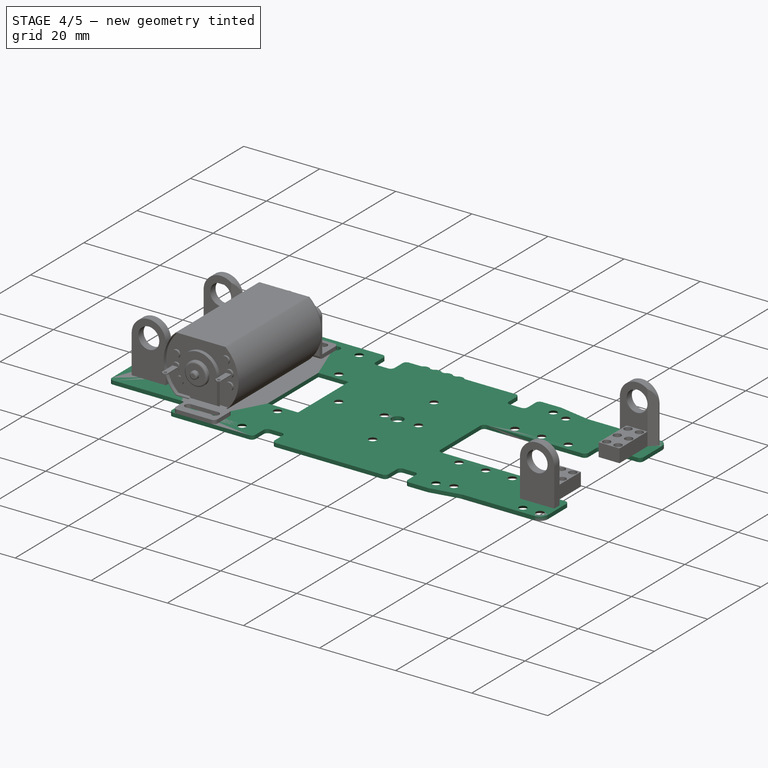
[diagram: stage 4 of 5 — iso view after this stage's code; geometry added in this stage tinted green]
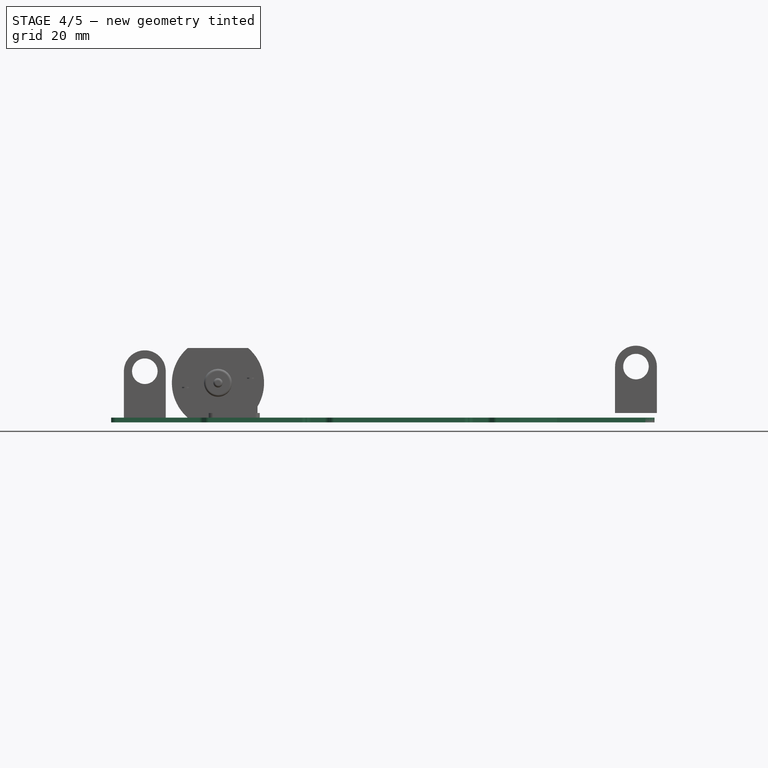
[diagram: stage 4 of 5 — front view after this stage's code; geometry added in this stage tinted green]
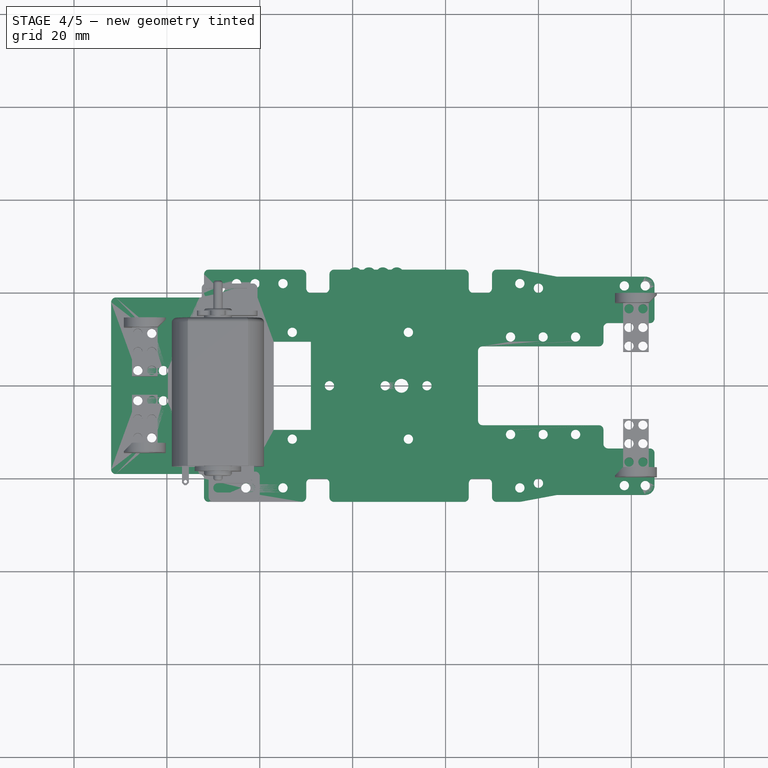
[diagram: stage 4 of 5 — top view after this stage's code; geometry added in this stage tinted green]
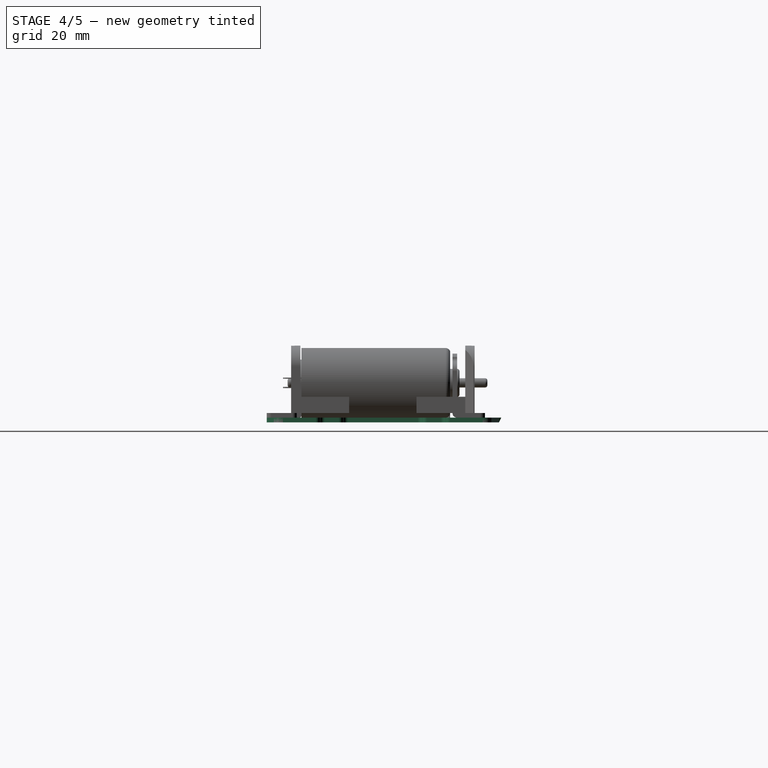
[diagram: stage 4 of 5 — right view after this stage's code; geometry added in this stage tinted green]
FEATURE [Sketcher::SketchObject] Sketch024
  Placement = pos=(0,0,1) rot=(0,0,1;0rad)
  sketch-geometry (1):
    g0: Circle CenterX=2 CenterY=2 CenterZ=0 NormalX=0 NormalY=0 NormalZ=1 Radius=1.5
FEATURE [Sketcher::SketchObject] Sketch025
  sketch-geometry (1):
    g0: Circle CenterX=2 CenterY=2 CenterZ=0 NormalX=0 NormalY=0 NormalZ=1 Radius=1
FEATURE [Part::Loft] Loft012  label="Loft081"
  Closed = false
  Placement = pos=(4.501,12,0) rot=(0,0,1;0rad)
  Ruled = false
  Sections = -> [Sketch025,Sketch024]
  Solid = true
FEATURE [Sketcher::SketchObject] Sketch026
  Placement = pos=(0,0,1) rot=(0,0,1;0rad)
  sketch-geometry (1):
    g0: Circle CenterX=2 CenterY=2 CenterZ=0 NormalX=0 NormalY=0 NormalZ=1 Radius=1.5
FEATURE [Sketcher::SketchObject] Sketch027
  sketch-geometry (1):
    g0: Circle CenterX=2 CenterY=2 CenterZ=0 NormalX=0 NormalY=0 NormalZ=1 Radius=1
FEATURE [Part::Loft] Loft013  label="Loft082"
  Closed = false
  Placement = pos=(1.5,12,0) rot=(0,0,1;0rad)
  Ruled = false
  Sections = -> [Sketch027,Sketch026]
  Solid = true
FEATURE [Sketcher::SketchObject] Sketch028
  Placement = pos=(0,0,1) rot=(0,0,1;0rad)
  sketch-geometry (1):
    g0: Circle CenterX=2 CenterY=2 CenterZ=0 NormalX=0 NormalY=0 NormalZ=1 Radius=1.5
FEATURE [Sketcher::SketchObject] Sketch029
  sketch-geometry (1):
    g0: Circle CenterX=2 CenterY=2 CenterZ=0 NormalX=0 NormalY=0 NormalZ=1 Radius=1
FEATURE [Part::Loft] Loft014  label="Loft083"
  Closed = false
  Placement = pos=(11.502,12,0) rot=(0,0,1;1.5708rad)
  Ruled = false
  Sections = -> [Sketch029,Sketch028]
  Solid = true
FEATURE [Sketcher::SketchObject] Sketch030
  Placement = pos=(0,0,1) rot=(0,0,1;0rad)
  sketch-geometry (1):
    g0: Circle CenterX=2 CenterY=2 CenterZ=0 NormalX=0 NormalY=0 NormalZ=1 Radius=1.5
FEATURE [Sketcher::SketchObject] Sketch031
  sketch-geometry (1):
    g0: Circle CenterX=2 CenterY=2 CenterZ=0 NormalX=0 NormalY=0 NormalZ=1 Radius=1
FEATURE [Part::Loft] Loft015  label="Loft084"
  Closed = false
  Placement = pos=(11.502,15.001,0) rot=(0,0,1;1.5708rad)
  Ruled = false
  Sections = -> [Sketch031,Sketch030]
  Solid = true
FEATURE [Sketcher::SketchObject] Sketch032
  sketch-geometry (1):
    g0: Circle CenterX=2 CenterY=2 CenterZ=0 NormalX=0 NormalY=0 NormalZ=1 Radius=1
FEATURE [Sketcher::SketchObject] Sketch033
  Placement = pos=(0,0,1) rot=(0,0,1;0rad)
  sketch-geometry (1):
    g0: Circle CenterX=2 CenterY=2 CenterZ=0 NormalX=0 NormalY=0 NormalZ=1 Radius=1.5
FEATURE [Sketcher::SketchObject] Sketch034
  Placement = pos=(0,0,1) rot=(0,0,1;0rad)
  sketch-geometry (1):
    g0: Circle CenterX=2 CenterY=2 CenterZ=0 NormalX=0 NormalY=0 NormalZ=1 Radius=1.5
FEATURE [Sketcher::SketchObject] Sketch035
  sketch-geometry (1):
    g0: Circle CenterX=2 CenterY=2 CenterZ=0 NormalX=0 NormalY=0 NormalZ=1 Radius=1
FEATURE [Part::Loft] Loft018  label="Loft087"
  Closed = false
  Placement = pos=(4.501,18.999,0) rot=(0,0,1;0rad)
  Ruled = false
  Sections = -> [Sketch035,Sketch034]
  Solid = true
FEATURE [Sketcher::SketchObject] Sketch036
  sketch-geometry (1):
    g0: Circle CenterX=2 CenterY=2 CenterZ=0 NormalX=0 NormalY=0 NormalZ=1 Radius=1
FEATURE [Part::Loft] Loft016  label="Loft085"
  Closed = false
  Placement = pos=(4.501,15.001,0) rot=(0,0,1;0rad)
  Ruled = false
  Sections = -> [Sketch036,Sketch033]
  Solid = true
FEATURE [Sketcher::SketchObject] Sketch037
  Placement = pos=(0,0,1) rot=(0,0,1;0rad)
  sketch-geometry (1):
    g0: Circle CenterX=2 CenterY=2 CenterZ=0 NormalX=0 NormalY=0 NormalZ=1 Radius=1.5
FEATURE [Part::Loft] Loft017  label="Loft086"
  Closed = false
  Placement = pos=(1.5,15.001,0) rot=(0,0,1;0rad)
  Ruled = false
  Sections = -> [Sketch032,Sketch037]
  Solid = true
FEATURE [Sketcher::SketchObject] Sketch038
  Placement = pos=(0,0,1) rot=(0,0,1;0rad)
  sketch-geometry (1):
    g0: Circle CenterX=2 CenterY=2 CenterZ=0 NormalX=0 NormalY=0 NormalZ=1 Radius=1.5
FEATURE [Sketcher::SketchObject] Sketch039
  sketch-geometry (1):
    g0: Circle CenterX=2 CenterY=2 CenterZ=0 NormalX=0 NormalY=0 NormalZ=1 Radius=1
FEATURE [Part::Loft] Loft019  label="Loft088"
  Closed = false
  Placement = pos=(1.5,18.999,0) rot=(0,0,1;0rad)
  Ruled = false
  Sections = -> [Sketch039,Sketch038]
  Solid = true
FEATURE [Sketcher::SketchObject] Sketch040
  Placement = pos=(0,0,1) rot=(0,0,1;0rad)
  sketch-geometry (1):
    g0: Circle CenterX=2 CenterY=2 CenterZ=0 NormalX=0 NormalY=0 NormalZ=1 Radius=1.5
FEATURE [Sketcher::SketchObject] Sketch041
  sketch-geometry (1):
    g0: Circle CenterX=2 CenterY=2 CenterZ=0 NormalX=0 NormalY=0 NormalZ=1 Radius=1
FEATURE [Part::Loft] Loft020  label="Loft089"
  Closed = false
  Placement = pos=(11.502,18.999,0) rot=(0,0,1;1.5708rad)
  Ruled = false
  Sections = -> [Sketch041,Sketch040]
  Solid = true
FEATURE [Sketcher::SketchObject] Sketch042
  Placement = pos=(0,0,1) rot=(0,0,1;0rad)
  sketch-geometry (1):
    g0: Circle CenterX=2 CenterY=2 CenterZ=0 NormalX=0 NormalY=0 NormalZ=1 Radius=1.5
FEATURE [Sketcher::SketchObject] Sketch043
  sketch-geometry (1):
    g0: Circle CenterX=2 CenterY=2 CenterZ=0 NormalX=0 NormalY=0 NormalZ=1 Radius=1
FEATURE [Part::Loft] Loft021  label="Loft090"
  Closed = false
  Placement = pos=(11.503,22,0) rot=(0,0,1;1.5708rad)
  Ruled = false
  Sections = -> [Sketch043,Sketch042]
  Solid = true
FEATURE [Sketcher::SketchObject] Sketch044
  sketch-geometry (1):
    g0: Circle CenterX=2 CenterY=2 CenterZ=0 NormalX=0 NormalY=0 NormalZ=1 Radius=1
FEATURE [Sketcher::SketchObject] Sketch045
  Placement = pos=(0,0,1) rot=(0,0,1;0rad)
  sketch-geometry (1):
    g0: Circle CenterX=2 CenterY=2 CenterZ=0 NormalX=0 NormalY=0 NormalZ=1 Radius=1.5
FEATURE [Sketcher::SketchObject] Sketch046
  sketch-geometry (1):
    g0: Circle CenterX=2 CenterY=2 CenterZ=0 NormalX=0 NormalY=0 NormalZ=1 Radius=1
FEATURE [Part::Loft] Loft022  label="Loft091"
  Closed = false
  Placement = pos=(4.501,22,0) rot=(0,0,1;0rad)
  Ruled = false
  Sections = -> [Sketch046,Sketch045]
  Solid = true
FEATURE [Sketcher::SketchObject] Sketch047
  Placement = pos=(0,0,1) rot=(0,0,1;0rad)
  sketch-geometry (1):
    g0: Circle CenterX=2 CenterY=2 CenterZ=0 NormalX=0 NormalY=0 NormalZ=1 Radius=1.5
FEATURE [Part::Loft] Loft023  label="Loft092"
  Closed = false
  Placement = pos=(1.5,22,0) rot=(0,0,1;0rad)
  Ruled = false
  Sections = -> [Sketch044,Sketch047]
  Solid = true
FEATURE [Sketcher::SketchObject] Sketch048
  Placement = pos=(0,0,1) rot=(0,0,1;0rad)
  sketch-geometry (1):
    g0: Circle CenterX=2 CenterY=2 CenterZ=0 NormalX=0 NormalY=0 NormalZ=1 Radius=1.5
FEATURE [Sketcher::SketchObject] Sketch049
  sketch-geometry (1):
    g0: Circle CenterX=2 CenterY=2 CenterZ=0 NormalX=0 NormalY=0 NormalZ=1 Radius=1
FEATURE [Part::Loft] Loft024  label="Loft093"
  Closed = false
  Placement = pos=(-1.5,12,0) rot=(0,0,1;0rad)
  Ruled = false
  Sections = -> [Sketch049,Sketch048]
  Solid = true
FEATURE [Sketcher::SketchObject] Sketch050
  Placement = pos=(0,0,1) rot=(0,0,1;0rad)
  sketch-geometry (1):
    g0: Circle CenterX=2 CenterY=2 CenterZ=0 NormalX=0 NormalY=0 NormalZ=1 Radius=1.5
FEATURE [Sketcher::SketchObject] Sketch051
  sketch-geometry (1):
    g0: Circle CenterX=2 CenterY=2 CenterZ=0 NormalX=0 NormalY=0 NormalZ=1 Radius=1
FEATURE [Part::Loft] Loft025  label="Loft094"
  Closed = false
  Placement = pos=(-1.5,22,0) rot=(0,0,1;0rad)
  Ruled = false
  Sections = -> [Sketch051,Sketch050]
  Solid = true
FEATURE [Sketcher::SketchObject] Sketch052
  Placement = pos=(0,0,1) rot=(0,0,1;0rad)
  sketch-geometry (1):
    g0: Circle CenterX=2 CenterY=2 CenterZ=0 NormalX=0 NormalY=0 NormalZ=1 Radius=1.5
FEATURE [Sketcher::SketchObject] Sketch053
  sketch-geometry (1):
    g0: Circle CenterX=2 CenterY=2 CenterZ=0 NormalX=0 NormalY=0 NormalZ=1 Radius=1
FEATURE [Part::Loft] Loft026  label="Loft095"
  Closed = false
  Placement = pos=(-1.5,17,0) rot=(0,0,1;0rad)
  Ruled = false
  Sections = -> [Sketch053,Sketch052]
  Solid = true
FEATURE [Part::MultiFuse] Fusion004
  Shapes = -> [Loft026,Loft025,Loft024]
FEATURE [Sketcher::SketchObject] Sketch179
  sketch-geometry (69):
    g0: ArcOfCircle CenterX=-51 CenterY=-18 CenterZ=0 NormalX=0 NormalY=0 NormalZ=1 Radius=1 StartAngle=3.14159 EndAngle=4.71239
    g1: LineSegment StartX=-51 StartY=-19 StartZ=0 EndX=-33 EndY=-19 EndZ=0
    g2: ArcOfCircle CenterX=-33 CenterY=-20 CenterZ=0 NormalX=0 NormalY=0 NormalZ=1 Radius=1 StartAngle=0 EndAngle=1.5708
    g3: LineSegment StartX=-52 StartY=-18 StartZ=0 EndX=-52 EndY=18 EndZ=0
    g4: ArcOfCircle CenterX=-51 CenterY=18 CenterZ=0 NormalX=0 NormalY=0 NormalZ=1 Radius=0.999999 StartAngle=1.5708 EndAngle=3.14159
    g5: LineSegment StartX=-51 StartY=19 StartZ=0 EndX=-33 EndY=19 EndZ=0
    g6: ArcOfCircle CenterX=-33 CenterY=20 CenterZ=0 NormalX=0 NormalY=0 NormalZ=1 Radius=1 StartAngle=4.71239 EndAngle=6.28318
    g7: LineSegment StartX=-32 StartY=20 StartZ=0 EndX=-32 EndY=24 EndZ=0
    g8: ArcOfCircle CenterX=-31 CenterY=24 CenterZ=0 NormalX=0 NormalY=0 NormalZ=1 Radius=1 StartAngle=1.5708 EndAngle=3.14159
    g9: LineSegment StartX=36 StartY=25 StartZ=0 EndX=44 EndY=23.5 EndZ=0
    g10: ArcOfCircle CenterX=64 CenterY=14.5 CenterZ=0 NormalX=0 NormalY=0 NormalZ=1 Radius=1 StartAngle=4.71239 EndAngle=6.28319
    g11: LineSegment StartX=64 StartY=13.5 StartZ=0 EndX=55 EndY=13.5 EndZ=0
    g12: ArcOfCircle CenterX=55 CenterY=12.5 CenterZ=0 NormalX=0 NormalY=0 NormalZ=1 Radius=1 StartAngle=1.5708 EndAngle=3.14159
    g13: LineSegment StartX=54 StartY=12.5 StartZ=0 EndX=54 EndY=9.5 EndZ=0
    g14: ArcOfCircle CenterX=53 CenterY=9.5 CenterZ=0 NormalX=0 NormalY=0 NormalZ=1 Radius=1 StartAngle=4.71239 EndAngle=6.28319
    g15: LineSegment StartX=53 StartY=8.5 StartZ=0 EndX=28 EndY=8.5 EndZ=0
    g16: ArcOfCircle CenterX=28 CenterY=7.5 CenterZ=0 NormalX=0 NormalY=0 NormalZ=1 Radius=1 StartAngle=1.5708 EndAngle=3.14159
    g17: LineSegment StartX=27 StartY=7.5 StartZ=0 EndX=27 EndY=-7.5 EndZ=0
    g18: ArcOfCircle CenterX=28 CenterY=-7.5 CenterZ=0 NormalX=0 NormalY=0 NormalZ=1 Radius=1 StartAngle=3.14159 EndAngle=4.71239
    g19: LineSegment StartX=28 StartY=-8.5 StartZ=0 EndX=53 EndY=-8.5 EndZ=0
    g20: ArcOfCircle CenterX=53 CenterY=-9.5 CenterZ=0 NormalX=0 NormalY=0 NormalZ=1 Radius=1 StartAngle=0 EndAngle=1.5708
    g21: LineSegment StartX=54 StartY=-9.5 StartZ=0 EndX=54 EndY=-12.5 EndZ=0
    g22: ArcOfCircle CenterX=55 CenterY=-12.5 CenterZ=0 NormalX=0 NormalY=0 NormalZ=1 Radius=1 StartAngle=3.14159 EndAngle=4.71239
    g23: LineSegment StartX=55 StartY=-13.5 StartZ=0 EndX=64 EndY=-13.5 EndZ=0
    g24: ArcOfCircle CenterX=64 CenterY=-14.5 CenterZ=0 NormalX=0 NormalY=0 NormalZ=1 Radius=1 StartAngle=0 EndAngle=1.5708
    g25: LineSegment StartX=44 StartY=-23.5 StartZ=0 EndX=36 EndY=-25 EndZ=0
    g26: ArcOfCircle CenterX=-31 CenterY=-24 CenterZ=0 NormalX=0 NormalY=0 NormalZ=1 Radius=1 StartAngle=3.14159 EndAngle=4.71239
    g27: LineSegment StartX=-32 StartY=-24 StartZ=0 EndX=-32 EndY=-20 EndZ=0
    g28: GeomPoint [constr] X=-33 Y=-19 Z=0
    g29: LineSegment StartX=-31 StartY=25 StartZ=0 EndX=-11 EndY=25 EndZ=0
    g30: ArcOfCircle CenterX=-11 CenterY=24 CenterZ=0 NormalX=0 NormalY=0 NormalZ=1 Radius=1 StartAngle=0 EndAngle=1.5708
    g31: LineSegment StartX=-10 StartY=24 StartZ=0 EndX=-10 EndY=21 EndZ=0
    g32: ArcOfCircle CenterX=-9 CenterY=21 CenterZ=0 NormalX=0 NormalY=0 NormalZ=1 Radius=1 StartAngle=3.14159 EndAngle=4.71239
    g33: LineSegment StartX=-9 StartY=20 StartZ=0 EndX=-6 EndY=20 EndZ=0
    g34: ArcOfCircle CenterX=-6 CenterY=21 CenterZ=0 NormalX=0 NormalY=0 NormalZ=1 Radius=1 StartAngle=4.71239 EndAngle=6.28319
    g35: LineSegment StartX=-5 StartY=21 StartZ=0 EndX=-5 EndY=24 EndZ=0
    g36: ArcOfCircle CenterX=-4 CenterY=24 CenterZ=0 NormalX=0 NormalY=0 NormalZ=1 Radius=1 StartAngle=1.5708 EndAngle=3.14159
    g37: LineSegment StartX=-31 StartY=-25 StartZ=0 EndX=-11 EndY=-25 EndZ=0
    g38: ArcOfCircle CenterX=-11 CenterY=-24 CenterZ=0 NormalX=0 NormalY=0 NormalZ=1 Radius=1 StartAngle=4.71239 EndAngle=6.28319
    g39: LineSegment StartX=-10 StartY=-24 StartZ=0 EndX=-10 EndY=-21 EndZ=0
    g40: ArcOfCircle CenterX=-9 CenterY=-21 CenterZ=0 NormalX=0 NormalY=0 NormalZ=1 Radius=1 StartAngle=1.5708 EndAngle=3.14159
    g41: LineSegment StartX=-9 StartY=-20 StartZ=0 EndX=-6 EndY=-20 EndZ=0
    g42: ArcOfCircle CenterX=-6 CenterY=-21 CenterZ=0 NormalX=0 NormalY=0 NormalZ=1 Radius=1 StartAngle=0 EndAngle=1.5708
    g43: LineSegment StartX=-5 StartY=-21 StartZ=0 EndX=-5 EndY=-24 EndZ=0
    g44: ArcOfCircle CenterX=-4 CenterY=-24 CenterZ=0 NormalX=0 NormalY=0 NormalZ=1 Radius=1 StartAngle=3.14159 EndAngle=4.71239
    g45: LineSegment StartX=-4 StartY=25 StartZ=0 EndX=24 EndY=25 EndZ=0
    g46: ArcOfCircle CenterX=24 CenterY=24 CenterZ=0 NormalX=0 NormalY=0 NormalZ=1 Radius=1 StartAngle=0 EndAngle=1.5708
    g47: LineSegment StartX=25 StartY=24 StartZ=0 EndX=25 EndY=21 EndZ=0
    g48: ArcOfCircle CenterX=26 CenterY=21 CenterZ=0 NormalX=0 NormalY=0 NormalZ=1 Radius=1 StartAngle=3.14159 EndAngle=4.71239
    g49: LineSegment StartX=26 StartY=20 StartZ=0 EndX=29 EndY=20 EndZ=0
    g50: ArcOfCircle CenterX=29 CenterY=21 CenterZ=0 NormalX=0 NormalY=0 NormalZ=1 Radius=1 StartAngle=4.71239 EndAngle=6.28319
    g51: LineSegment StartX=30 StartY=21 StartZ=0 EndX=30 EndY=24 EndZ=0
    g52: ArcOfCircle CenterX=31 CenterY=24 CenterZ=0 NormalX=0 NormalY=0 NormalZ=1 Radius=1 StartAngle=1.5708 EndAngle=3.14159
    g53: LineSegment StartX=31 StartY=25 StartZ=0 EndX=36 EndY=25 EndZ=0
    g54: LineSegment StartX=-4 StartY=-25 StartZ=0 EndX=24 EndY=-25 EndZ=0
    g55: ArcOfCircle CenterX=24 CenterY=-24 CenterZ=0 NormalX=0 NormalY=0 NormalZ=1 Radius=1 StartAngle=4.71239 EndAngle=6.28319
    g56: LineSegment StartX=25 StartY=-24 StartZ=0 EndX=25 EndY=-21 EndZ=0
    g57: ArcOfCircle CenterX=26 CenterY=-21 CenterZ=0 NormalX=0 NormalY=0 NormalZ=1 Radius=1 StartAngle=1.5708 EndAngle=3.14159
    g58: LineSegment StartX=26 StartY=-20 StartZ=0 EndX=29 EndY=-20 EndZ=0
    g59: ArcOfCircle CenterX=29 CenterY=-21 CenterZ=0 NormalX=0 NormalY=0 NormalZ=1 Radius=1 StartAngle=0 EndAngle=1.5708
    g60: LineSegment StartX=30 StartY=-21 StartZ=0 EndX=30 EndY=-24 EndZ=0
    g61: ArcOfCircle CenterX=31 CenterY=-24 CenterZ=0 NormalX=0 NormalY=0 NormalZ=1 Radius=1 StartAngle=3.14159 EndAngle=4.71239
    g62: LineSegment StartX=31 StartY=-25 StartZ=0 EndX=36 EndY=-25 EndZ=0
    g63: ArcOfCircle CenterX=63 CenterY=21.5 CenterZ=0 NormalX=0 NormalY=0 NormalZ=1 Radius=2 StartAngle=0 EndAngle=1.5708
    g64: LineSegment StartX=63 StartY=23.5 StartZ=0 EndX=44 EndY=23.5 EndZ=0
    g65: LineSegment StartX=65 StartY=21.5 StartZ=0 EndX=65 EndY=14.5 EndZ=0
    g66: ArcOfCircle CenterX=63 CenterY=-21.5 CenterZ=0 NormalX=0 NormalY=0 NormalZ=1 Radius=2 StartAngle=4.71239 EndAngle=6.28319
    g67: LineSegment StartX=65 StartY=-21.5 StartZ=0 EndX=65 EndY=-14.5 EndZ=0
    g68: LineSegment StartX=63 StartY=-23.5 StartZ=0 EndX=44 EndY=-23.5 EndZ=0
  constraints (107):
    c: Horizontal(g1)
    c: Coincident(g3,g0)
    c: Vertical(g3)
    c: Coincident(g5,g4)
    c: Horizontal(g5)
    c: Tangent(g5,g4)
    c: Coincident(g7,g6)
    c: Vertical(g7)
    c: Coincident(g11,g10)
    c: Horizontal(g11)
    c: Coincident(g12,g11)
    c: Coincident(g13,g12)
    c: Vertical(g13)
    c: Coincident(g14,g13)
    c: Coincident(g15,g14)
    c: Horizontal(g15)
    c: Coincident(g16,g15)
    c: Coincident(g17,g16)
    c: Vertical(g17)
    c: Coincident(g18,g17)
    c: Coincident(g19,g18)
    c: Horizontal(g19)
    c: Coincident(g20,g19)
    c: Coincident(g21,g20)
    c: Vertical(g21)
    c: Coincident(g22,g21)
    c: Coincident(g23,g22)
    c: Horizontal(g23)
    c: Coincident(g24,g23)
    c: Coincident(g27,g26)
    c: Coincident(g27,g2)
    c: Vertical(g27)
    c: Tangent(g27,g8)
    c: Coincident(g28,g1)
    c: Coincident(g0,g1)
    c: Coincident(g1,g2)
    c: Coincident(g3,g4)
    c: Coincident(g5,g6)
    c: Coincident(g7,g8)
    c: Coincident(g29,g8)
    c: Horizontal(g29)
    c: Tangent(g29,g8)
    c: Coincident(g30,g29)
    c: Coincident(g31,g30)
    c: Vertical(g31)
    c: Coincident(g32,g31)
    c: Coincident(g35,g34)
    c: Vertical(g35)
    c: Coincident(g36,g35)
    c: Coincident(g33,g32)
    c: Coincident(g34,g33)
    c: Coincident(g37,g26)
    c: Horizontal(g37)
    c: Coincident(g39,g38)
    c: Vertical(g39)
    c: Coincident(g40,g39)
    c: Coincident(g41,g40)
    c: Horizontal(g41)
    c: Coincident(g42,g41)
    c: Coincident(g43,g42)
    c: Vertical(g43)
    c: Tangent(g43,g36)
    c: Coincident(g37,g38)
    c: Coincident(g44,g43)
    c: Coincident(g45,g36)
    c: Horizontal(g45)
    c: Coincident(g46,g45)
    c: Coincident(g47,g46)
    c: Vertical(g47)
    c: Coincident(g48,g47)
    c: Coincident(g49,g48)
    c: Coincident(g50,g49)
    c: Coincident(g51,g50)
    c: Vertical(g51)
    c: Coincident(g52,g51)
    c: Coincident(g53,g52)
    c: Coincident(g53,g9)
    c: Horizontal(g53)
    c: Tangent(g53,g46)
    c: Horizontal(g54)
    c: Coincident(g55,g54)
    c: Coincident(g56,g55)
    c: Vertical(g56)
    c: Tangent(g56,g46)
    c: Coincident(g58,g57)
    c: Horizontal(g58)
    c: Coincident(g59,g58)
    c: Coincident(g60,g59)
    c: Vertical(g60)
    c: Coincident(g61,g60)
    c: Coincident(g62,g61)
    c: Coincident(g62,g25)
    c: Horizontal(g62)
    c: Coincident(g54,g44)
    c: Coincident(g56,g57)
    c: Coincident(g64,g63)
    c: Coincident(g65,g63)
    c: Coincident(g65,g10)
    c: Vertical(g65)
    c: Coincident(g67,g66)
    c: Coincident(g67,g24)
    c: Vertical(g67)
    c: Tangent(g67,g63)
    c: Coincident(g68,g66)
    c: Coincident(g68,g25)
    c: Horizontal(g68)
    c: Coincident(g9,g64)
FEATURE [Sketcher::SketchObject] Sketch180
  Placement = pos=(0,0,1) rot=(0,0,1;0rad)
  sketch-geometry (1):
    g0: Circle CenterX=-43.5 CenterY=11 CenterZ=0 NormalX=0 NormalY=0 NormalZ=1 Radius=1
FEATURE [Sketcher::SketchObject] Sketch181
  sketch-geometry (1):
    g0: Circle CenterX=-43.5 CenterY=11 CenterZ=0 NormalX=0 NormalY=0 NormalZ=1 Radius=2
FEATURE [Part::Loft] Loft041
  Closed = false
  Placement = pos=(-2.75,-7.75,0) rot=(0,0,1;0rad)
  Ruled = false
  Sections = -> [Sketch181,Sketch180]
  Solid = true
FEATURE [Sketcher::SketchObject] Sketch182
  Placement = pos=(0,0,1) rot=(0,0,1;0rad)
  sketch-geometry (1):
    g0: Circle CenterX=-43.5 CenterY=11 CenterZ=0 NormalX=0 NormalY=0 NormalZ=1 Radius=1
FEATURE [Sketcher::SketchObject] Sketch183
  sketch-geometry (1):
    g0: Circle CenterX=-43.5 CenterY=11 CenterZ=0 NormalX=0 NormalY=0 NormalZ=1 Radius=2
FEATURE [Part::Loft] Loft042
  Closed = false
  Placement = pos=(2.75,-7.75,0) rot=(0,0,1;0rad)
  Ruled = false
  Sections = -> [Sketch183,Sketch182]
  Solid = true
FEATURE [Sketcher::SketchObject] Sketch184
  sketch-geometry (1):
    g0: Circle CenterX=-43.5 CenterY=11 CenterZ=0 NormalX=0 NormalY=0 NormalZ=1 Radius=2
FEATURE [Sketcher::SketchObject] Sketch185
  Placement = pos=(0,0,1) rot=(0,0,1;0rad)
  sketch-geometry (1):
    g0: Circle CenterX=-43.5 CenterY=11 CenterZ=0 NormalX=0 NormalY=0 NormalZ=1 Radius=1
FEATURE [Sketcher::SketchObject] Sketch186
  Placement = pos=(0,0,1) rot=(0,0,1;0rad)
  sketch-geometry (1):
    g0: Circle CenterX=-43.5 CenterY=11 CenterZ=0 NormalX=0 NormalY=0 NormalZ=1 Radius=1
FEATURE [Part::Loft] Loft043
  Closed = false
  Placement = pos=(-2.75,-14.25,0) rot=(0,0,1;0rad)
  Ruled = false
  Sections = -> [Sketch184,Sketch186]
  Solid = true
FEATURE [Sketcher::SketchObject] Sketch187
  sketch-geometry (1):
    g0: Circle CenterX=-43.5 CenterY=11 CenterZ=0 NormalX=0 NormalY=0 NormalZ=1 Radius=2
FEATURE [Part::Loft] Loft044
  Closed = false
  Placement = pos=(2.75,-14.25,0) rot=(0,0,1;0rad)
  Ruled = false
  Sections = -> [Sketch187,Sketch185]
  Solid = true
FEATURE [Sketcher::SketchObject] Sketch188
  Placement = pos=(0,0,1) rot=(0,0,1;0rad)
  sketch-geometry (1):
    g0: Circle CenterX=-43.5 CenterY=11 CenterZ=0 NormalX=0 NormalY=0 NormalZ=1 Radius=1
FEATURE [Sketcher::SketchObject] Sketch189
  sketch-geometry (1):
    g0: Circle CenterX=-43.5 CenterY=11 CenterZ=0 NormalX=0 NormalY=0 NormalZ=1 Radius=2
FEATURE [Part::Loft] Loft045
  Closed = false
  Placement = pos=(0.25,-22.25,0) rot=(0,0,1;0rad)
  Ruled = false
  Sections = -> [Sketch189,Sketch188]
  Solid = true
FEATURE [Sketcher::SketchObject] Sketch190
  Placement = pos=(0,0,1) rot=(0,0,1;0rad)
  sketch-geometry (1):
    g0: Circle CenterX=-43.5 CenterY=11 CenterZ=0 NormalX=0 NormalY=0 NormalZ=1 Radius=1
FEATURE [Sketcher::SketchObject] Sketch191
  sketch-geometry (1):
    g0: Circle CenterX=-43.5 CenterY=11 CenterZ=0 NormalX=0 NormalY=0 NormalZ=1 Radius=2
FEATURE [Part::Loft] Loft046
  Closed = false
  Placement = pos=(0.25,0.25,0) rot=(0,0,1;0rad)
  Ruled = false
  Sections = -> [Sketch191,Sketch190]
  Solid = true
FEATURE [Sketcher::SketchObject] Sketch192
  Placement = pos=(0,0,1) rot=(0,0,1;0rad)
  sketch-geometry (1):
    g0: Circle CenterX=-43.5 CenterY=11 CenterZ=0 NormalX=0 NormalY=0 NormalZ=1 Radius=1
FEATURE [Sketcher::SketchObject] Sketch193
  sketch-geometry (1):
    g0: Circle CenterX=-43.5 CenterY=11 CenterZ=0 NormalX=0 NormalY=0 NormalZ=1 Radius=2
FEATURE [Part::Loft] Loft047
  Closed = false
  Placement = pos=(28.5,11,0) rot=(0,0,1;0rad)
  Ruled = false
  Sections = -> [Sketch193,Sketch192]
  Solid = true
FEATURE [Sketcher::SketchObject] Sketch194
  Placement = pos=(0,0,1) rot=(0,0,1;0rad)
  sketch-geometry (1):
    g0: Circle CenterX=-43.5 CenterY=11 CenterZ=0 NormalX=0 NormalY=0 NormalZ=1 Radius=1
FEATURE [Sketcher::SketchObject] Sketch195
  sketch-geometry (1):
    g0: Circle CenterX=-43.5 CenterY=11 CenterZ=0 NormalX=0 NormalY=0 NormalZ=1 Radius=2
FEATURE [Part::Loft] Loft048
  Closed = false
  Placement = pos=(28.5,-33,0) rot=(0,0,1;0rad)
  Ruled = false
  Sections = -> [Sketch195,Sketch194]
  Solid = true
FEATURE [Sketcher::SketchObject] Sketch196
  Placement = pos=(0,0,1) rot=(0,0,1;0rad)
  sketch-geometry (1):
    g0: Circle CenterX=-43.5 CenterY=11 CenterZ=0 NormalX=0 NormalY=0 NormalZ=1 Radius=1
FEATURE [Sketcher::SketchObject] Sketch197
  sketch-geometry (1):
    g0: Circle CenterX=-43.5 CenterY=11 CenterZ=0 NormalX=0 NormalY=0 NormalZ=1 Radius=2
FEATURE [Part::Loft] Loft049
  Closed = false
  Placement = pos=(79.5,-33,0) rot=(0,0,1;0rad)
  Ruled = false
  Sections = -> [Sketch197,Sketch196]
  Solid = true
FEATURE [Sketcher::SketchObject] Sketch198
  Placement = pos=(0,0,1) rot=(0,0,1;0rad)
  sketch-geometry (1):
    g0: Circle CenterX=-43.5 CenterY=11 CenterZ=0 NormalX=0 NormalY=0 NormalZ=1 Radius=1
FEATURE [Sketcher::SketchObject] Sketch199
  sketch-geometry (1):
    g0: Circle CenterX=-43.5 CenterY=11 CenterZ=0 NormalX=0 NormalY=0 NormalZ=1 Radius=2
FEATURE [Part::Loft] Loft050
  Closed = false
  Placement = pos=(79.5,11,0) rot=(0,0,1;0rad)
  Ruled = false
  Sections = -> [Sketch199,Sketch198]
  Solid = true
FEATURE [Sketcher::SketchObject] Sketch206
  Placement = pos=(0,0,1) rot=(0,0,1;0rad)
  sketch-geometry (1):
    g0: Circle CenterX=-43.5 CenterY=11 CenterZ=0 NormalX=0 NormalY=0 NormalZ=1 Radius=1
FEATURE [Sketcher::SketchObject] Sketch207
  sketch-geometry (1):
    g0: Circle CenterX=-43.5 CenterY=11 CenterZ=0 NormalX=0 NormalY=0 NormalZ=1 Radius=2
FEATURE [Part::Loft] Loft054
  Closed = false
  Placement = pos=(102,-32.5,0) rot=(0,0,1;0rad)
  Ruled = false
  Sections = -> [Sketch207,Sketch206]
  Solid = true
FEATURE [Part::Extrusion] Extrude039
  Base = -> Sketch179
  Dir = (0,0,1)
  Solid = true
FEATURE [Part::Extrusion] Extrude040
  Base = -> Sketch224
  Dir = (0,0,1)
  Solid = true
FEATURE [Sketcher::SketchObject] Sketch239
  sketch-geometry (1):
    g0: Circle CenterX=10.5 CenterY=0 CenterZ=0 NormalX=0 NormalY=0 NormalZ=1 Radius=1.5
  constraints (1):
    c: PointOnObject(g0,g-1)
FEATURE [Part::Extrusion] Extrude041
  Base = -> Sketch239
  Dir = (0,0,1)
  Solid = true
FEATURE [Sketcher::SketchObject] Sketch240
  Placement = pos=(0.5,1.5,0) rot=(0,0,1;0rad)
  sketch-geometry (1):
    g0: Circle CenterX=-23.5 CenterY=20.5 CenterZ=0 NormalX=0 NormalY=0 NormalZ=1 Radius=1
FEATURE [Part::Extrusion] Extrude042
  Base = -> Sketch240
  Dir = (0,0,1)
  Solid = true
FEATURE [Sketcher::SketchObject] Sketch241
  Placement = pos=(0.5,1.5,0) rot=(0,0,1;0rad)
  sketch-geometry (1):
    g0: Circle CenterX=-23.5 CenterY=20.5 CenterZ=0 NormalX=0 NormalY=0 NormalZ=1 Radius=1
FEATURE [Part::Extrusion] Extrude043
  Base = -> Sketch241
  Dir = (0,0,1)
  Placement = pos=(2,-44,0) rot=(0,0,1;0rad)
  Solid = true
FEATURE [Sketcher::SketchObject] Sketch242
  Placement = pos=(0.5,1.5,0) rot=(0,0,1;0rad)
  sketch-geometry (1):
    g0: Circle CenterX=-23.5 CenterY=20.5 CenterZ=0 NormalX=0 NormalY=0 NormalZ=1 Radius=1
FEATURE [Part::Extrusion] Extrude044
  Base = -> Sketch242
  Dir = (0,0,1)
  Placement = pos=(-2,-44,0) rot=(0,0,1;0rad)
  Solid = true
FEATURE [Sketcher::SketchObject] Sketch243
  Placement = pos=(0.5,1.5,0) rot=(0,0,1;0rad)
  sketch-geometry (1):
    g0: Circle CenterX=-23.5 CenterY=20.5 CenterZ=0 NormalX=0 NormalY=0 NormalZ=1 Radius=1
FEATURE [Part::Extrusion] Extrude045
  Base = -> Sketch243
  Dir = (0,0,1)
  Placement = pos=(-5.5,-43,0) rot=(0,0,1;0rad)
  Solid = true
FEATURE [Part::MultiFuse] Fusion014
  Shapes = -> [Loft048,Loft047,Loft049,Loft050,Loft051,Loft052,Loft054,Loft053,Loft055,Loft056,Loft057,Loft058,Loft059,Loft060,Loft061,Loft062,Loft063,Loft064,Loft065,Loft066,Loft067,Loft068,Loft069]
FEATURE [Part::MultiFuse] Fusion015
  Shapes = -> [Loft041,Loft042,Loft044,Loft043,Loft045,Loft046]
FEATURE [Part::MultiFuse] Fusion016
  Shapes = -> [Extrude040,Extrude041,Extrude045,Extrude044,Extrude043,Extrude042]
FEATURE [Part::Cut] Cut026
  Base = -> Extrude039
  Tool = -> Fusion014
FEATURE [Part::Cut] Cut027
  Base = -> Cut026
  Tool = -> Fusion015
FEATURE [Part::Cut] Cut028  label="SC8000-A!wrong"
  Base = -> Cut027
  Tool = -> Fusion016
FEATURE [Part::Mirroring] Part__Mirroring  label="SC8000-A"
  Base = (0,0,0)
  Normal = (0,1,0)
  Source = -> Cut028
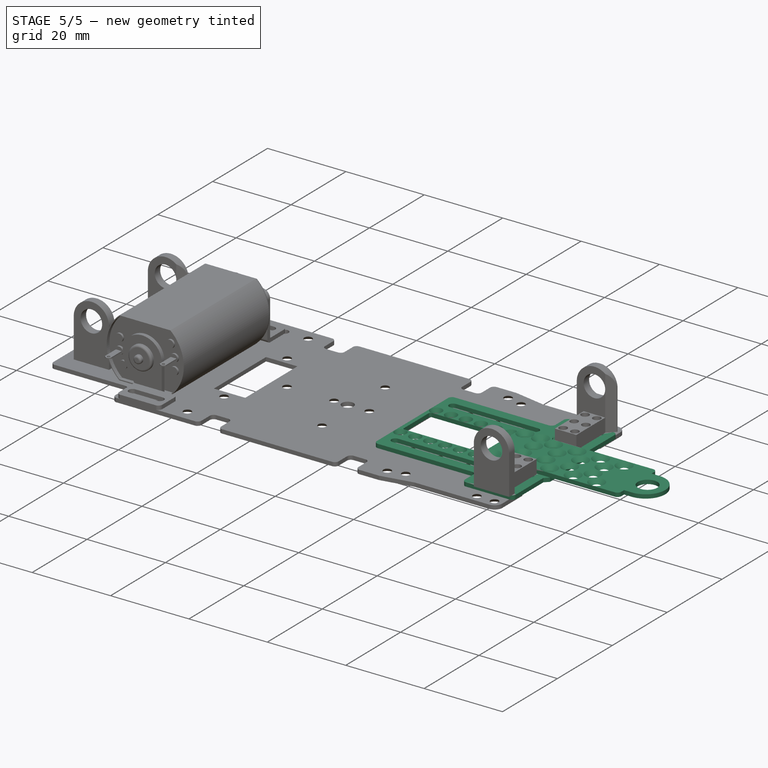
[diagram: stage 5 of 5 — iso view after this stage's code; geometry added in this stage tinted green]
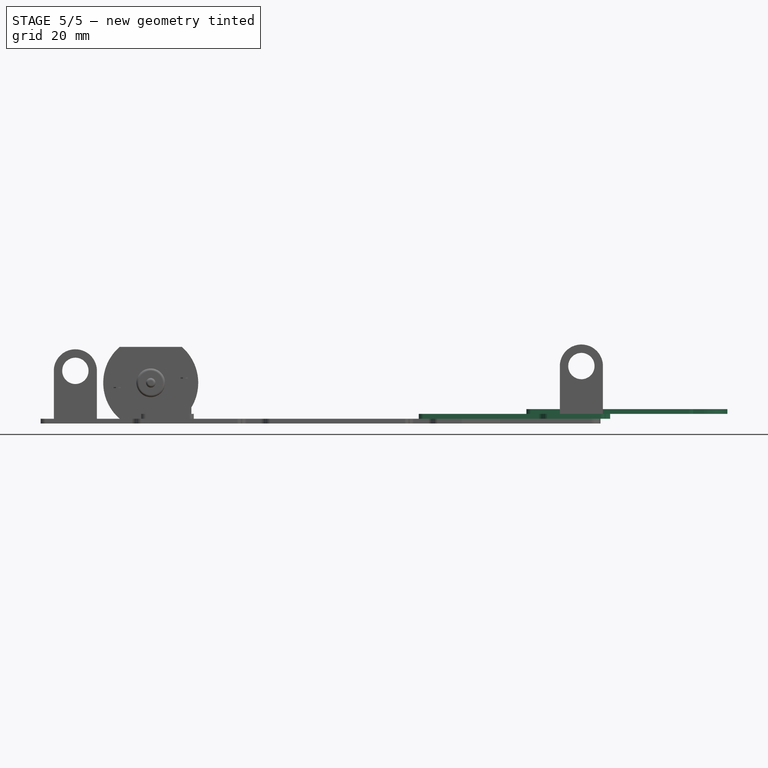
[diagram: stage 5 of 5 — front view after this stage's code; geometry added in this stage tinted green]
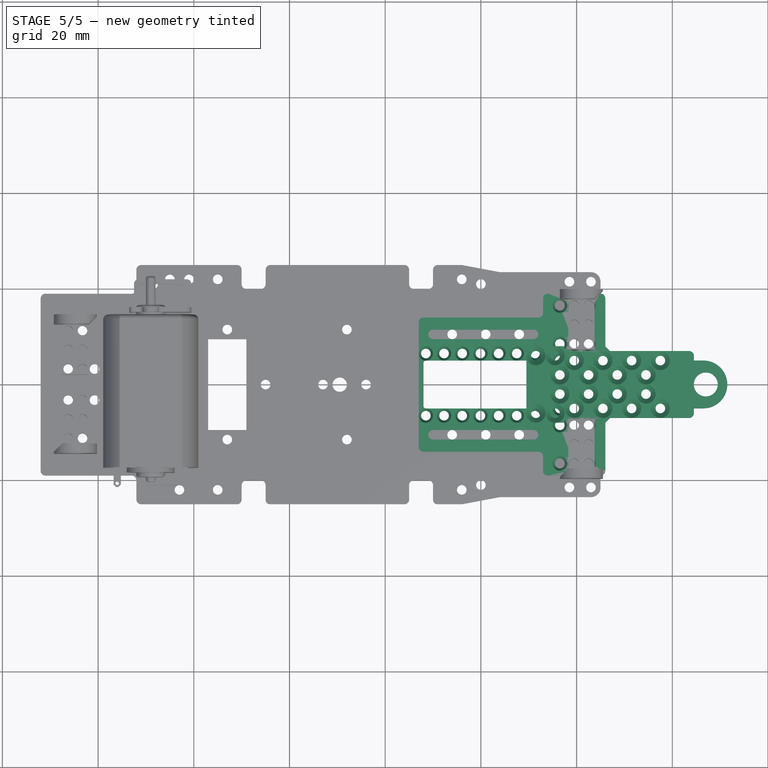
[diagram: stage 5 of 5 — top view after this stage's code; geometry added in this stage tinted green]
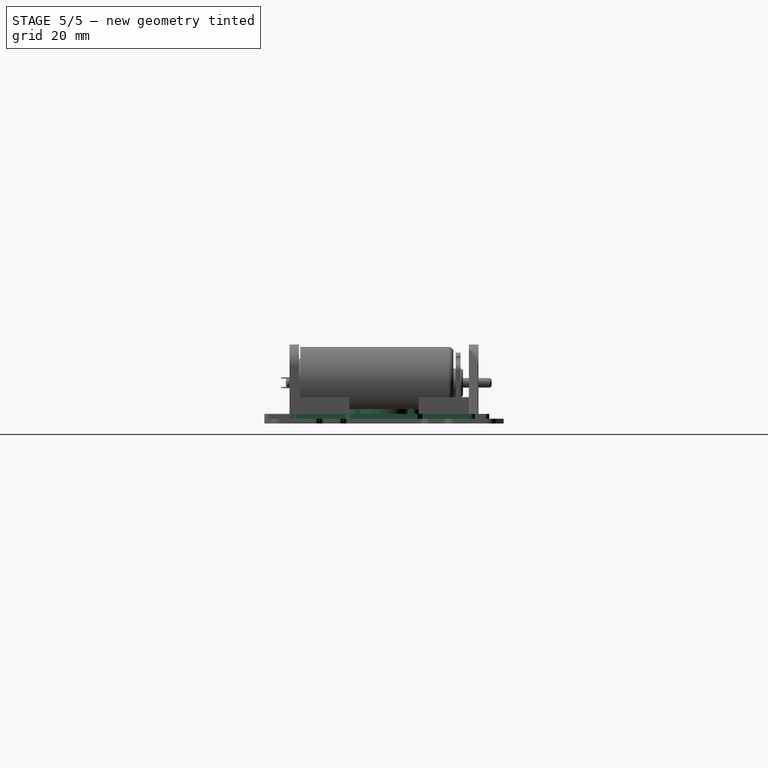
[diagram: stage 5 of 5 — right view after this stage's code; geometry added in this stage tinted green]
FEATURE [Part::Cut] Cut009  label="SC8000-C"
  Placement = pos=(49.5,-8,2) rot=(0,0,1;0rad)
FEATURE [Sketcher::SketchObject] Sketch
  Placement = pos=(0,0,1) rot=(0,0,1;0rad)
  sketch-geometry (1):
    g0: Circle CenterX=2 CenterY=2 CenterZ=0 NormalX=0 NormalY=0 NormalZ=1 Radius=1.5
FEATURE [Sketcher::SketchObject] Sketch001
  sketch-geometry (1):
    g0: Circle CenterX=2 CenterY=2 CenterZ=0 NormalX=0 NormalY=0 NormalZ=1 Radius=1
FEATURE [Part::Loft] Loft  label="Loft070"
  Closed = false
  Placement = pos=(4.501,0.5,0) rot=(0,0,1;0rad)
  Ruled = false
  Sections = -> [Sketch001,Sketch]
  Solid = true
FEATURE [Sketcher::SketchObject] Sketch002
  Placement = pos=(0,0,1) rot=(0,0,1;0rad)
  sketch-geometry (1):
    g0: Circle CenterX=2 CenterY=2 CenterZ=0 NormalX=0 NormalY=0 NormalZ=1 Radius=1.5
FEATURE [Sketcher::SketchObject] Sketch003
  sketch-geometry (1):
    g0: Circle CenterX=2 CenterY=2 CenterZ=0 NormalX=0 NormalY=0 NormalZ=1 Radius=1
FEATURE [Part::Loft] Loft001  label="Loft071"
  Closed = false
  Placement = pos=(11.502,0.5,0) rot=(0,0,1;1.5708rad)
  Ruled = false
  Sections = -> [Sketch003,Sketch002]
  Solid = true
FEATURE [Sketcher::SketchObject] Sketch004
  Placement = pos=(0,0,1) rot=(0,0,1;0rad)
  sketch-geometry (1):
    g0: Circle CenterX=2 CenterY=2 CenterZ=0 NormalX=0 NormalY=0 NormalZ=1 Radius=1.5
FEATURE [Sketcher::SketchObject] Sketch005
  Placement = pos=(0,0,1) rot=(0,0,1;0rad)
  sketch-geometry (1):
    g0: Circle CenterX=2 CenterY=2 CenterZ=0 NormalX=0 NormalY=0 NormalZ=1 Radius=1.5
FEATURE [Sketcher::SketchObject] Sketch006
  sketch-geometry (1):
    g0: Circle CenterX=2 CenterY=2 CenterZ=0 NormalX=0 NormalY=0 NormalZ=1 Radius=1
FEATURE [Part::Loft] Loft003  label="Loft073"
  Closed = false
  Placement = pos=(4.501,33.5,0) rot=(0,0,1;0rad)
  Ruled = false
  Sections = -> [Sketch006,Sketch005]
  Solid = true
FEATURE [Sketcher::SketchObject] Sketch007
  sketch-geometry (1):
    g0: Circle CenterX=2 CenterY=2 CenterZ=0 NormalX=0 NormalY=0 NormalZ=1 Radius=1
FEATURE [Part::Loft] Loft002  label="Loft072"
  Closed = false
  Placement = pos=(1.5,0.5,0) rot=(0,0,1;0rad)
  Ruled = false
  Sections = -> [Sketch007,Sketch004]
  Solid = true
FEATURE [Sketcher::SketchObject] Sketch008
  Placement = pos=(0,0,1) rot=(0,0,1;0rad)
  sketch-geometry (1):
    g0: Circle CenterX=2 CenterY=2 CenterZ=0 NormalX=0 NormalY=0 NormalZ=1 Radius=1.5
FEATURE [Sketcher::SketchObject] Sketch009
  sketch-geometry (1):
    g0: Circle CenterX=2 CenterY=2 CenterZ=0 NormalX=0 NormalY=0 NormalZ=1 Radius=1
FEATURE [Part::Loft] Loft004  label="Loft074"
  Closed = false
  Placement = pos=(11.502,33.5,0) rot=(0,0,1;1.5708rad)
  Ruled = false
  Sections = -> [Sketch009,Sketch008]
  Solid = true
FEATURE [Sketcher::SketchObject] Sketch010
  Placement = pos=(0,0,1) rot=(0,0,1;0rad)
  sketch-geometry (1):
    g0: Circle CenterX=2 CenterY=2 CenterZ=0 NormalX=0 NormalY=0 NormalZ=1 Radius=1.5
FEATURE [Sketcher::SketchObject] Sketch011
  sketch-geometry (1):
    g0: Circle CenterX=2 CenterY=2 CenterZ=0 NormalX=0 NormalY=0 NormalZ=1 Radius=1
FEATURE [Part::Loft] Loft005  label="Loft"
  Closed = false
  Placement = pos=(1.5,33.5,0) rot=(0,0,1;0rad)
  Ruled = false
  Sections = -> [Sketch011,Sketch010]
  Solid = true
FEATURE [Sketcher::SketchObject] Sketch012
  sketch-geometry (1):
    g0: Circle CenterX=2 CenterY=2 CenterZ=0 NormalX=0 NormalY=0 NormalZ=1 Radius=1
FEATURE [Sketcher::SketchObject] Sketch013
  Placement = pos=(0,0,1) rot=(0,0,1;0rad)
  sketch-geometry (1):
    g0: Circle CenterX=2 CenterY=2 CenterZ=0 NormalX=0 NormalY=0 NormalZ=1 Radius=1.5
FEATURE [Sketcher::SketchObject] Sketch014
  sketch-geometry (1):
    g0: Circle CenterX=2 CenterY=2 CenterZ=0 NormalX=0 NormalY=0 NormalZ=1 Radius=1
FEATURE [Part::Loft] Loft006  label="Loft075"
  Closed = false
  Placement = pos=(11.502,25.5,0) rot=(0,0,1;1.5708rad)
  Ruled = false
  Sections = -> [Sketch014,Sketch013]
  Solid = true
FEATURE [Sketcher::SketchObject] Sketch015
  Placement = pos=(0,0,1) rot=(0,0,1;0rad)
  sketch-geometry (1):
    g0: Circle CenterX=2 CenterY=2 CenterZ=0 NormalX=0 NormalY=0 NormalZ=1 Radius=1.5
FEATURE [Part::Loft] Loft007  label="Loft076"
  Closed = false
  Placement = pos=(1.5,25.5,0) rot=(0,0,1;0rad)
  Ruled = false
  Sections = -> [Sketch012,Sketch015]
  Solid = true
FEATURE [Sketcher::SketchObject] Sketch016
  Placement = pos=(0,0,1) rot=(0,0,1;0rad)
  sketch-geometry (1):
    g0: Circle CenterX=2 CenterY=2 CenterZ=0 NormalX=0 NormalY=0 NormalZ=1 Radius=1.5
FEATURE [Sketcher::SketchObject] Sketch017
  sketch-geometry (1):
    g0: Circle CenterX=2 CenterY=2 CenterZ=0 NormalX=0 NormalY=0 NormalZ=1 Radius=1
FEATURE [Part::Loft] Loft008  label="Loft077"
  Closed = false
  Placement = pos=(4.501,25.5,0) rot=(0,0,1;0rad)
  Ruled = false
  Sections = -> [Sketch017,Sketch016]
  Solid = true
FEATURE [Sketcher::SketchObject] Sketch018
  Placement = pos=(0,0,1) rot=(0,0,1;0rad)
  sketch-geometry (1):
    g0: Circle CenterX=2 CenterY=2 CenterZ=0 NormalX=0 NormalY=0 NormalZ=1 Radius=1.5
FEATURE [Sketcher::SketchObject] Sketch019
  sketch-geometry (1):
    g0: Circle CenterX=2 CenterY=2 CenterZ=0 NormalX=0 NormalY=0 NormalZ=1 Radius=1
FEATURE [Part::Loft] Loft009  label="Loft078"
  Closed = false
  Placement = pos=(11.502,8.5,0) rot=(0,0,1;1.5708rad)
  Ruled = false
  Sections = -> [Sketch019,Sketch018]
  Solid = true
FEATURE [Sketcher::SketchObject] Sketch020
  Placement = pos=(0,0,1) rot=(0,0,1;0rad)
  sketch-geometry (1):
    g0: Circle CenterX=2 CenterY=2 CenterZ=0 NormalX=0 NormalY=0 NormalZ=1 Radius=1.5
FEATURE [Sketcher::SketchObject] Sketch021
  sketch-geometry (1):
    g0: Circle CenterX=2 CenterY=2 CenterZ=0 NormalX=0 NormalY=0 NormalZ=1 Radius=1
FEATURE [Part::Loft] Loft010  label="Loft079"
  Closed = false
  Placement = pos=(1.5,8.5,0) rot=(0,0,1;0rad)
  Ruled = false
  Sections = -> [Sketch021,Sketch020]
  Solid = true
FEATURE [Sketcher::SketchObject] Sketch022
  Placement = pos=(0,0,1) rot=(0,0,1;0rad)
  sketch-geometry (1):
    g0: Circle CenterX=2 CenterY=2 CenterZ=0 NormalX=0 NormalY=0 NormalZ=1 Radius=1.5
FEATURE [Sketcher::SketchObject] Sketch023
  sketch-geometry (1):
    g0: Circle CenterX=2 CenterY=2 CenterZ=0 NormalX=0 NormalY=0 NormalZ=1 Radius=1
FEATURE [Part::Loft] Loft011  label="Loft080"
  Closed = false
  Placement = pos=(4.501,8.5,0) rot=(0,0,1;0rad)
  Ruled = false
  Sections = -> [Sketch023,Sketch022]
  Solid = true
FEATURE [Sketcher::SketchObject] Sketch054
  sketch-geometry (4):
    g0: ArcOfCircle CenterX=36 CenterY=8 CenterZ=0 NormalX=0 NormalY=0 NormalZ=1 Radius=1 StartAngle=4.71239 EndAngle=7.85398
    g1: ArcOfCircle CenterX=15 CenterY=8 CenterZ=0 NormalX=0 NormalY=0 NormalZ=1 Radius=1 StartAngle=1.5708 EndAngle=4.71239
    g2: LineSegment StartX=15 StartY=7 StartZ=0 EndX=36 EndY=7 EndZ=0
    g3: LineSegment StartX=15 StartY=9 StartZ=0 EndX=36 EndY=9 EndZ=0
  constraints (8):
    c: PointOnObject(g2,g1)
    c: Horizontal(g2)
    c: PointOnObject(g3,g1)
    c: Horizontal(g3)
    c: Coincident(g0,g2)
    c: Coincident(g0,g3)
    c: Coincident(g1,g2)
    c: Coincident(g1,g3)
FEATURE [Sketcher::SketchObject] Sketch055
  Placement = pos=(0,22,0) rot=(0,0,1;0rad)
  sketch-geometry (4):
    g0: ArcOfCircle CenterX=36 CenterY=8 CenterZ=0 NormalX=0 NormalY=0 NormalZ=1 Radius=1 StartAngle=4.71239 EndAngle=7.85398
    g1: ArcOfCircle CenterX=15 CenterY=8 CenterZ=0 NormalX=0 NormalY=0 NormalZ=1 Radius=1 StartAngle=1.5708 EndAngle=4.71239
    g2: LineSegment StartX=15 StartY=7 StartZ=0 EndX=36 EndY=7 EndZ=0
    g3: LineSegment StartX=15 StartY=9 StartZ=0 EndX=36 EndY=9 EndZ=0
  constraints (8):
    c: PointOnObject(g2,g1)
    c: Horizontal(g2)
    c: PointOnObject(g3,g1)
    c: Horizontal(g3)
    c: Coincident(g0,g2)
    c: Coincident(g0,g3)
    c: Coincident(g1,g2)
    c: Coincident(g1,g3)
FEATURE [Part::Extrusion] Extrude
  Base = -> Sketch054
  Dir = (0,0,1)
  Placement = pos=(0,0.5,0) rot=(0,0,1;0rad)
  Solid = true
FEATURE [Part::Extrusion] Extrude001
  Base = -> Sketch055
  Dir = (0,0,1)
  Placement = pos=(0,-0.5,0) rot=(0,0,1;0rad)
  Solid = true
FEATURE [Sketcher::SketchObject] Sketch056
  Placement = pos=(0,0,1) rot=(0,0,1;0rad)
  sketch-geometry (1):
    g0: Circle CenterX=2 CenterY=2 CenterZ=0 NormalX=0 NormalY=0 NormalZ=1 Radius=1.5
FEATURE [Sketcher::SketchObject] Sketch057
  sketch-geometry (1):
    g0: Circle CenterX=2 CenterY=2 CenterZ=0 NormalX=0 NormalY=0 NormalZ=1 Radius=1
FEATURE [Part::Loft] Loft027  label="Loft096"
  Closed = false
  Placement = pos=(39.5,23.5,0) rot=(0,0,1;1.5708rad)
  Ruled = false
  Sections = -> [Sketch057,Sketch056]
  Solid = true
FEATURE [Sketcher::SketchObject] Sketch058
  Placement = pos=(0,0,1) rot=(0,0,1;0rad)
  sketch-geometry (1):
    g0: Circle CenterX=2 CenterY=2 CenterZ=0 NormalX=0 NormalY=0 NormalZ=1 Radius=1.5
FEATURE [Sketcher::SketchObject] Sketch059
  sketch-geometry (1):
    g0: Circle CenterX=2 CenterY=2 CenterZ=0 NormalX=0 NormalY=0 NormalZ=1 Radius=1
FEATURE [Part::Loft] Loft028  label="Loft097"
  Closed = false
  Placement = pos=(35.7,23.5,0) rot=(0,0,1;1.5708rad)
  Ruled = false
  Sections = -> [Sketch059,Sketch058]
  Solid = true
FEATURE [Sketcher::SketchObject] Sketch060
  Placement = pos=(0,0,1) rot=(0,0,1;0rad)
  sketch-geometry (1):
    g0: Circle CenterX=2 CenterY=2 CenterZ=0 NormalX=0 NormalY=0 NormalZ=1 Radius=1.5
FEATURE [Sketcher::SketchObject] Sketch061
  sketch-geometry (1):
    g0: Circle CenterX=2 CenterY=2 CenterZ=0 NormalX=0 NormalY=0 NormalZ=1 Radius=1
FEATURE [Part::Loft] Loft029  label="Loft098"
  Closed = false
  Placement = pos=(31.9,23.5,0) rot=(0,0,1;1.5708rad)
  Ruled = false
  Sections = -> [Sketch061,Sketch060]
  Solid = true
FEATURE [Sketcher::SketchObject] Sketch062
  Placement = pos=(0,0,1) rot=(0,0,1;0rad)
  sketch-geometry (1):
    g0: Circle CenterX=2 CenterY=2 CenterZ=0 NormalX=0 NormalY=0 NormalZ=1 Radius=1.5
FEATURE [Sketcher::SketchObject] Sketch063
  sketch-geometry (1):
    g0: Circle CenterX=2 CenterY=2 CenterZ=0 NormalX=0 NormalY=0 NormalZ=1 Radius=1
FEATURE [Part::Loft] Loft030  label="Loft099"
  Closed = false
  Placement = pos=(28.1,23.5,0) rot=(0,0,1;1.5708rad)
  Ruled = false
  Sections = -> [Sketch063,Sketch062]
  Solid = true
FEATURE [Sketcher::SketchObject] Sketch064
  Placement = pos=(0,0,1) rot=(0,0,1;0rad)
  sketch-geometry (1):
    g0: Circle CenterX=2 CenterY=2 CenterZ=0 NormalX=0 NormalY=0 NormalZ=1 Radius=1.5
FEATURE [Sketcher::SketchObject] Sketch065
  sketch-geometry (1):
    g0: Circle CenterX=2 CenterY=2 CenterZ=0 NormalX=0 NormalY=0 NormalZ=1 Radius=1
FEATURE [Sketcher::SketchObject] Sketch066
  Placement = pos=(0,0,1) rot=(0,0,1;0rad)
  sketch-geometry (1):
    g0: Circle CenterX=2 CenterY=2 CenterZ=0 NormalX=0 NormalY=0 NormalZ=1 Radius=1.5
FEATURE [Sketcher::SketchObject] Sketch067
  sketch-geometry (1):
    g0: Circle CenterX=2 CenterY=2 CenterZ=0 NormalX=0 NormalY=0 NormalZ=1 Radius=1
FEATURE [Part::Loft] Loft032  label="Loft101"
  Closed = false
  Placement = pos=(16.7,23.5,0) rot=(0,0,1;1.5708rad)
  Ruled = false
  Sections = -> [Sketch067,Sketch066]
  Solid = true
FEATURE [Sketcher::SketchObject] Sketch068
  sketch-geometry (1):
    g0: Circle CenterX=2 CenterY=2 CenterZ=0 NormalX=0 NormalY=0 NormalZ=1 Radius=1
FEATURE [Part::Loft] Loft033  label="Loft102"
  Closed = false
  Placement = pos=(20.5,23.5,0) rot=(0,0,1;1.5708rad)
  Ruled = false
  Sections = -> [Sketch068,Sketch064]
  Solid = true
FEATURE [Sketcher::SketchObject] Sketch069
  Placement = pos=(0,0,1) rot=(0,0,1;0rad)
  sketch-geometry (1):
    g0: Circle CenterX=2 CenterY=2 CenterZ=0 NormalX=0 NormalY=0 NormalZ=1 Radius=1.5
FEATURE [Part::Loft] Loft031  label="Loft100"
  Closed = false
  Placement = pos=(24.3,23.5,0) rot=(0,0,1;1.5708rad)
  Ruled = false
  Sections = -> [Sketch065,Sketch069]
  Solid = true
FEATURE [Sketcher::SketchObject] Sketch070
  Placement = pos=(0,0,1) rot=(0,0,1;0rad)
  sketch-geometry (1):
    g0: Circle CenterX=2 CenterY=2 CenterZ=0 NormalX=0 NormalY=0 NormalZ=1 Radius=1.5
FEATURE [Sketcher::SketchObject] Sketch071
  sketch-geometry (1):
    g0: Circle CenterX=2 CenterY=2 CenterZ=0 NormalX=0 NormalY=0 NormalZ=1 Radius=1
FEATURE [Part::Loft] Loft034  label="Loft103"
  Closed = false
  Placement = pos=(20.5,10.5,0) rot=(0,0,1;1.5708rad)
  Ruled = false
  Sections = -> [Sketch071,Sketch070]
  Solid = true
FEATURE [Sketcher::SketchObject] Sketch072
  Placement = pos=(0,0,1) rot=(0,0,1;0rad)
  sketch-geometry (1):
    g0: Circle CenterX=2 CenterY=2 CenterZ=0 NormalX=0 NormalY=0 NormalZ=1 Radius=1.5
FEATURE [Sketcher::SketchObject] Sketch073
  Placement = pos=(0,0,1) rot=(0,0,1;0rad)
  sketch-geometry (1):
    g0: Circle CenterX=2 CenterY=2 CenterZ=0 NormalX=0 NormalY=0 NormalZ=1 Radius=1.5
FEATURE [Sketcher::SketchObject] Sketch074
  sketch-geometry (1):
    g0: Circle CenterX=2 CenterY=2 CenterZ=0 NormalX=0 NormalY=0 NormalZ=1 Radius=1
FEATURE [Sketcher::SketchObject] Sketch075
  sketch-geometry (1):
    g0: Circle CenterX=2 CenterY=2 CenterZ=0 NormalX=0 NormalY=0 NormalZ=1 Radius=1
FEATURE [Sketcher::SketchObject] Sketch076
  Placement = pos=(0,0,1) rot=(0,0,1;0rad)
  sketch-geometry (1):
    g0: Circle CenterX=2 CenterY=2 CenterZ=0 NormalX=0 NormalY=0 NormalZ=1 Radius=1.5
FEATURE [Sketcher::SketchObject] Sketch077
  sketch-geometry (1):
    g0: Circle CenterX=2 CenterY=2 CenterZ=0 NormalX=0 NormalY=0 NormalZ=1 Radius=1
FEATURE [Part::Loft] Loft035  label="Loft104"
  Closed = false
  Placement = pos=(16.7,10.5,0) rot=(0,0,1;1.5708rad)
  Ruled = false
  Sections = -> [Sketch077,Sketch072]
  Solid = true
FEATURE [Sketcher::SketchObject] Sketch078
  Placement = pos=(0,0,1) rot=(0,0,1;0rad)
  sketch-geometry (1):
    g0: Circle CenterX=2 CenterY=2 CenterZ=0 NormalX=0 NormalY=0 NormalZ=1 Radius=1.5
FEATURE [Sketcher::SketchObject] Sketch079
  sketch-geometry (1):
    g0: Circle CenterX=2 CenterY=2 CenterZ=0 NormalX=0 NormalY=0 NormalZ=1 Radius=1
FEATURE [Part::Loft] Loft037  label="Loft106"
  Closed = false
  Placement = pos=(35.7,10.5,0) rot=(0,0,1;1.5708rad)
  Ruled = false
  Sections = -> [Sketch079,Sketch078]
  Solid = true
FEATURE [Part::Loft] Loft038  label="Loft107"
  Closed = false
  Placement = pos=(24.3,10.5,0) rot=(0,0,1;1.5708rad)
  Ruled = false
  Sections = -> [Sketch074,Sketch073]
  Solid = true
FEATURE [Sketcher::SketchObject] Sketch080
  sketch-geometry (1):
    g0: Circle CenterX=2 CenterY=2 CenterZ=0 NormalX=0 NormalY=0 NormalZ=1 Radius=1
FEATURE [Part::Loft] Loft039  label="Loft108"
  Closed = false
  Placement = pos=(28.1,10.5,0) rot=(0,0,1;1.5708rad)
  Ruled = false
  Sections = -> [Sketch080,Sketch076]
  Solid = true
FEATURE [Sketcher::SketchObject] Sketch081
  Placement = pos=(0,0,1) rot=(0,0,1;0rad)
  sketch-geometry (1):
    g0: Circle CenterX=2 CenterY=2 CenterZ=0 NormalX=0 NormalY=0 NormalZ=1 Radius=1.5
FEATURE [Sketcher::SketchObject] Sketch082
  sketch-geometry (1):
    g0: Circle CenterX=2 CenterY=2 CenterZ=0 NormalX=0 NormalY=0 NormalZ=1 Radius=1
FEATURE [Part::Loft] Loft040  label="Loft109"
  Closed = false
  Placement = pos=(39.5,10.5,0) rot=(0,0,1;1.5708rad)
  Ruled = false
  Sections = -> [Sketch082,Sketch081]
  Solid = true
FEATURE [Sketcher::SketchObject] Sketch083
  Placement = pos=(0,0,1) rot=(0,0,1;0rad)
  sketch-geometry (1):
    g0: Circle CenterX=2 CenterY=2 CenterZ=0 NormalX=0 NormalY=0 NormalZ=1 Radius=1.5
FEATURE [Part::Loft] Loft036  label="Loft105"
  Closed = false
  Placement = pos=(31.9,10.5,0) rot=(0,0,1;1.5708rad)
  Ruled = false
  Sections = -> [Sketch075,Sketch083]
  Solid = true
FEATURE [Sketcher::SketchObject] Sketch084
  sketch-geometry (20):
    g0: ArcOfCircle CenterX=1 CenterY=1 CenterZ=0 NormalX=0 NormalY=0 NormalZ=1 Radius=1 StartAngle=3.14159 EndAngle=4.71239
    g1: LineSegment StartX=1 StartY=0 StartZ=0 EndX=12 EndY=0 EndZ=0
    g2: ArcOfCircle CenterX=12 CenterY=1 CenterZ=0 NormalX=0 NormalY=0 NormalZ=1 Radius=1 StartAngle=4.71239 EndAngle=6.28319
    g3: LineSegment StartX=13 StartY=1 StartZ=0 EndX=13 EndY=4 EndZ=0
    g4: ArcOfCircle CenterX=14 CenterY=4 CenterZ=0 NormalX=0 NormalY=0 NormalZ=1 Radius=1 StartAngle=1.5708 EndAngle=3.14159
    g5: LineSegment StartX=14 StartY=5 StartZ=0 EndX=38 EndY=5 EndZ=0
    g6: ArcOfCircle CenterX=38 CenterY=6 CenterZ=0 NormalX=0 NormalY=0 NormalZ=1 Radius=1 StartAngle=4.71239 EndAngle=6.28319
    g7: LineSegment StartX=39 StartY=6 StartZ=0 EndX=39 EndY=32 EndZ=0
    g8: ArcOfCircle CenterX=38 CenterY=32 CenterZ=0 NormalX=0 NormalY=0 NormalZ=1 Radius=1 StartAngle=0 EndAngle=1.5708
    g9: LineSegment StartX=38 StartY=33 StartZ=0 EndX=14 EndY=33 EndZ=0
    g10: ArcOfCircle CenterX=14 CenterY=34 CenterZ=0 NormalX=0 NormalY=0 NormalZ=1 Radius=1 StartAngle=3.14159 EndAngle=4.71239
    g11: LineSegment StartX=13 StartY=34 StartZ=0 EndX=13 EndY=37 EndZ=0
    g12: ArcOfCircle CenterX=12 CenterY=37 CenterZ=0 NormalX=0 NormalY=0 NormalZ=1 Radius=1 StartAngle=0 EndAngle=1.5708
    g13: LineSegment StartX=12 StartY=38 StartZ=0 EndX=1 EndY=38 EndZ=0
    g14: ArcOfCircle CenterX=1 CenterY=37 CenterZ=0 NormalX=0 NormalY=0 NormalZ=1 Radius=1 StartAngle=1.5708 EndAngle=3.14159
    g15: LineSegment StartX=0 StartY=37 StartZ=0 EndX=0 EndY=27 EndZ=0
    g16: LineSegment StartX=0 StartY=27 StartZ=0 EndX=-1 EndY=26 EndZ=0
    g17: LineSegment StartX=-1 StartY=26 StartZ=0 EndX=-1 EndY=12 EndZ=0
    g18: LineSegment StartX=-1 StartY=12 StartZ=0 EndX=0 EndY=11 EndZ=0
    g19: LineSegment StartX=0 StartY=11 StartZ=0 EndX=0 EndY=1 EndZ=0
  constraints (36):
    c: PointOnObject(g0,g-2)
    c: PointOnObject(g0,g-1)
    c: Coincident(g1,g0)
    c: Horizontal(g1)
    c: Coincident(g2,g1)
    c: Coincident(g3,g2)
    c: Vertical(g3)
    c: PointOnObject(g4,g3)
    c: Coincident(g5,g4)
    c: Horizontal(g5)
    c: Coincident(g6,g5)
    c: Coincident(g7,g6)
    c: Vertical(g7)
    c: Coincident(g9,g8)
    c: Horizontal(g9)
    c: Tangent(g9,g8)
    c: Coincident(g11,g10)
    c: Vertical(g11)
    c: Coincident(g12,g11)
    c: Coincident(g13,g12)
    c: Horizontal(g13)
    c: Tangent(g13,g12)
    c: PointOnObject(g14,g-2)
    c: Coincident(g15,g14)
    c: PointOnObject(g15,g-2)
    c: Tangent(g15,g14)
    c: Coincident(g16,g15)
    c: Coincident(g17,g16)
    c: Coincident(g18,g17)
    c: PointOnObject(g18,g-2)
    c: Coincident(g19,g18)
    c: Coincident(g19,g0)
    c: Coincident(g3,g4)
    c: Coincident(g8,g7)
    c: Coincident(g10,g9)
    c: Coincident(g14,g13)
FEATURE [Part::Extrusion] Extrude002
  Base = -> Sketch084
  Dir = (0,0,1)
  Solid = true
FEATURE [Part::MultiFuse] Fusion
  Shapes = -> [Loft027,Loft028,Loft029,Loft030,Loft031,Loft032,Loft033]
FEATURE [Part::MultiFuse] Fusion001
  Shapes = -> [Loft035,Loft036,Loft037,Loft038,Loft039,Loft040,Loft034]
FEATURE [Sketcher::SketchObject] Sketch085
  sketch-geometry (8):
    g0: LineSegment StartX=13 StartY=24 StartZ=0 EndX=37.5 EndY=24 EndZ=0
    g1: ArcOfCircle CenterX=37.5 CenterY=23.5 CenterZ=0 NormalX=0 NormalY=0 NormalZ=1 Radius=0.5 StartAngle=0 EndAngle=1.5708
    g2: ArcOfCircle CenterX=13 CenterY=23.5 CenterZ=0 NormalX=0 NormalY=0 NormalZ=1 Radius=0.5 StartAngle=1.5708 EndAngle=3.14159
    g3: LineSegment StartX=12.5 StartY=23.5 StartZ=0 EndX=12.5 EndY=14.5 EndZ=0
    g4: ArcOfCircle CenterX=13 CenterY=14.5 CenterZ=0 NormalX=0 NormalY=0 NormalZ=1 Radius=0.5 StartAngle=3.14159 EndAngle=4.71239
    g5: LineSegment StartX=13 StartY=14 StartZ=0 EndX=37.5 EndY=14 EndZ=0
    g6: ArcOfCircle CenterX=37.5 CenterY=14.5 CenterZ=0 NormalX=0 NormalY=0 NormalZ=1 Radius=0.5 StartAngle=4.71239 EndAngle=6.28319
    g7: LineSegment StartX=38 StartY=14.5 StartZ=0 EndX=38 EndY=23.5 EndZ=0
  constraints (12):
    c: Horizontal(g0)
    c: Coincident(g1,g0)
    c: Coincident(g3,g2)
    c: Vertical(g3)
    c: Coincident(g4,g3)
    c: Coincident(g5,g4)
    c: Horizontal(g5)
    c: Coincident(g6,g5)
    c: Coincident(g7,g6)
    c: Coincident(g7,g1)
    c: Vertical(g7)
    c: Coincident(g0,g2)
FEATURE [Part::Extrusion] Extrude003
  Base = -> Sketch085
  Dir = (0,0,1)
  Solid = true
FEATURE [Part::MultiFuse] Fusion002
  Shapes = -> [Extrude003,Extrude,Extrude001]
FEATURE [Part::Cut] Cut
  Base = -> Extrude002
  Tool = -> Fusion002
FEATURE [Part::MultiFuse] Fusion003
  Placement = pos=(0.001,0,0) rot=(0,0,1;0rad)
  Shapes = -> [Loft003,Loft004,Loft005,Loft007,Loft008,Loft006,Loft023,Loft022,Loft021,Loft019,Loft018,Loft020,Loft017,Loft016,Loft015,Loft013,Loft012,Loft014,Loft010,Loft011,Loft009,Loft002,Loft,Loft001]
FEATURE [Part::MultiFuse] Fusion005
  Shapes = -> [Fusion003,Fusion004]
FEATURE [Part::MultiFuse] Fusion006
  Shapes = -> [Fusion001,Fusion005,Fusion]
FEATURE [Part::Cut] Cut010  label="SC8000-B"
  Base = -> Cut
  Placement = pos=(66,19,1) rot=(0,0,1;3.14159rad)
  Tool = -> Fusion006
FEATURE [Part::Compound] Compound006  label="SC8000.base"
  Links = -> [Cut009,Cut010,Part__Mirroring]
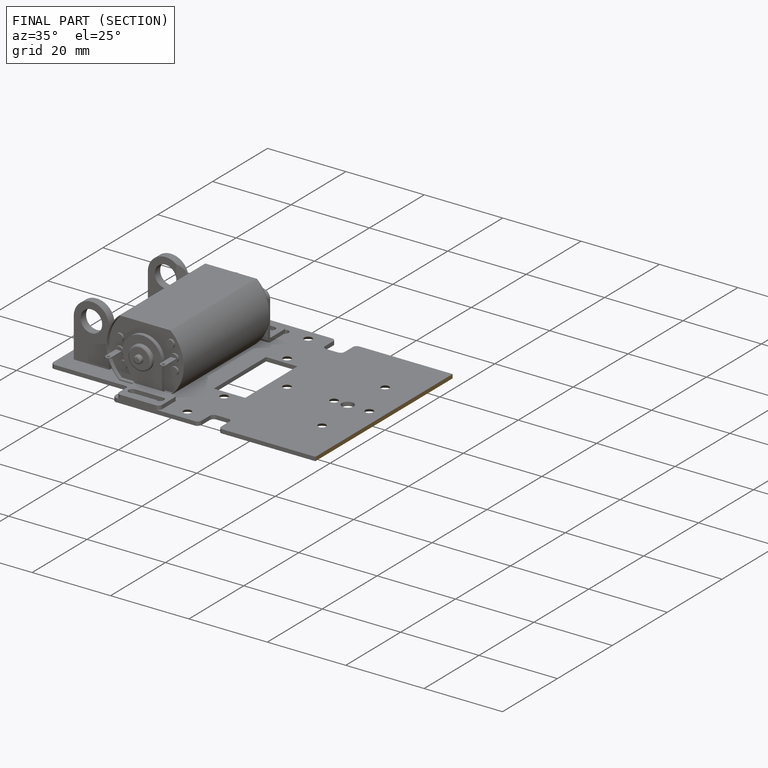
[diagram: finished part — half-section view (interior)]
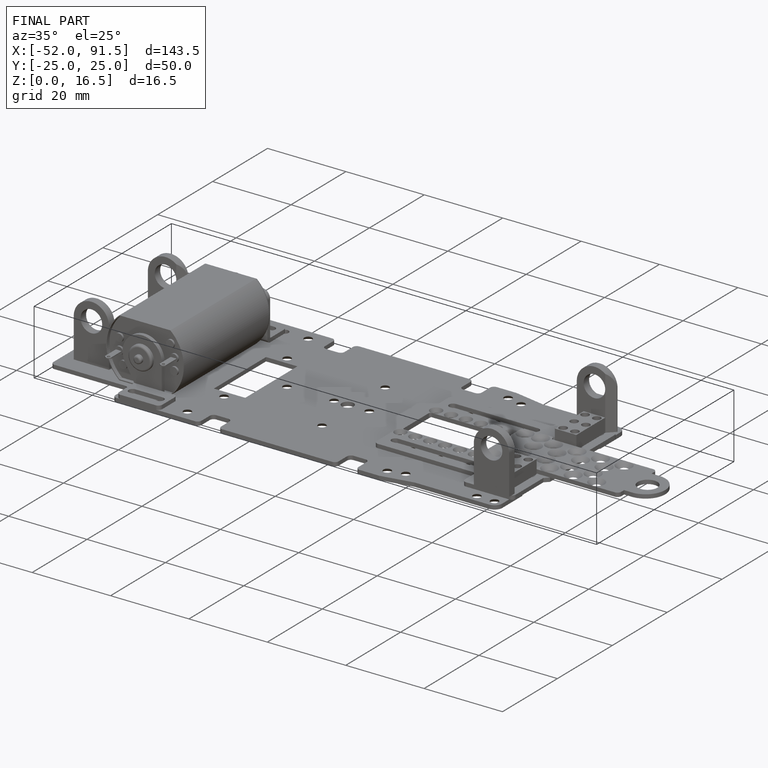
[diagram: finished part — iso view with bounding-box wireframe]
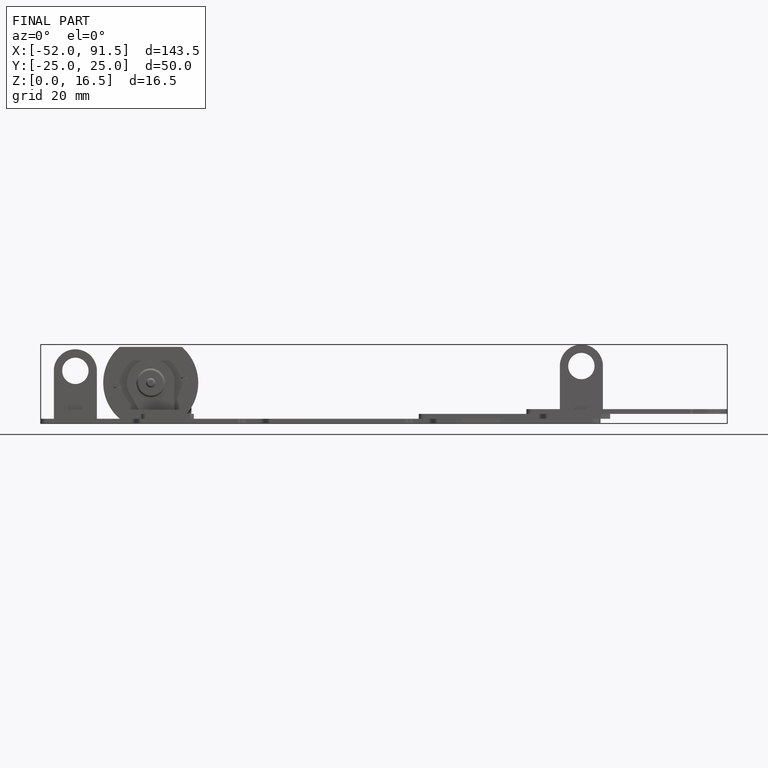
[diagram: finished part — front view with bounding-box wireframe]
